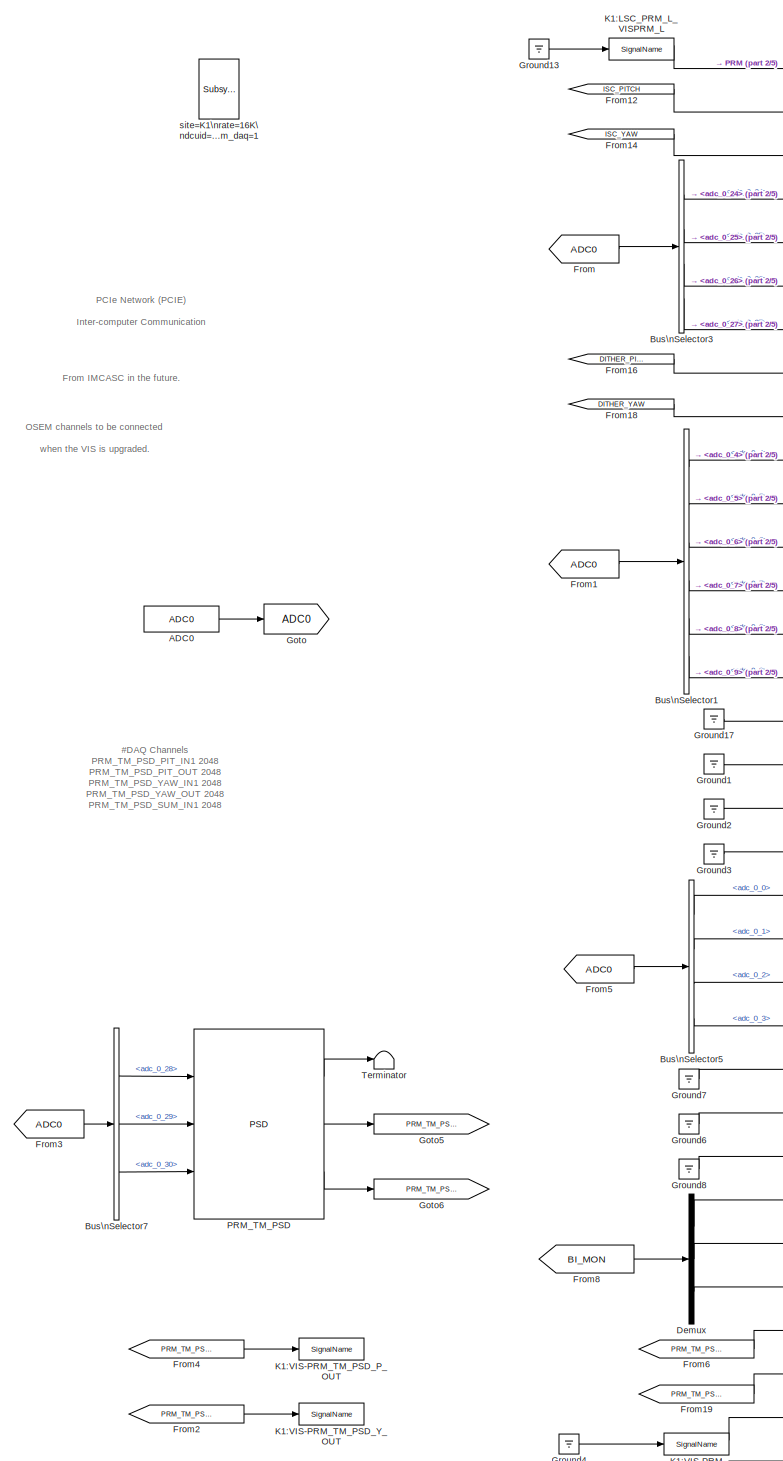
[diagram: root canvas - part 1/5, left side, full height]
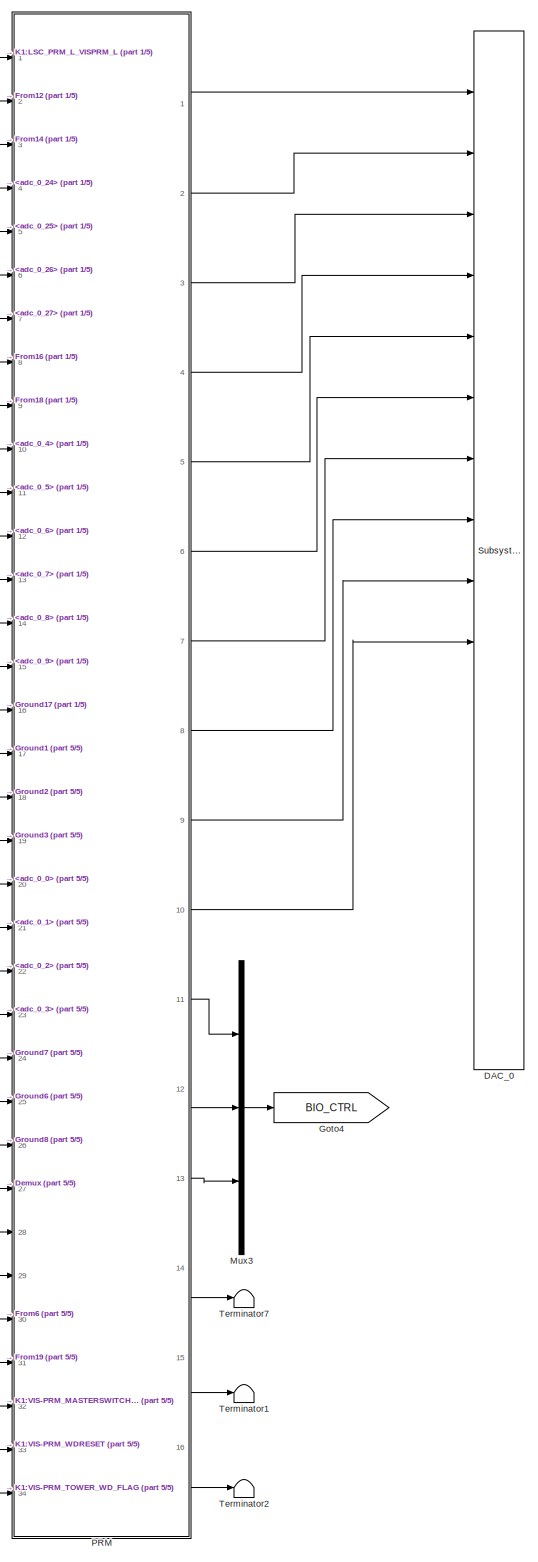
[diagram: root canvas - part 2/5, center side, full height]
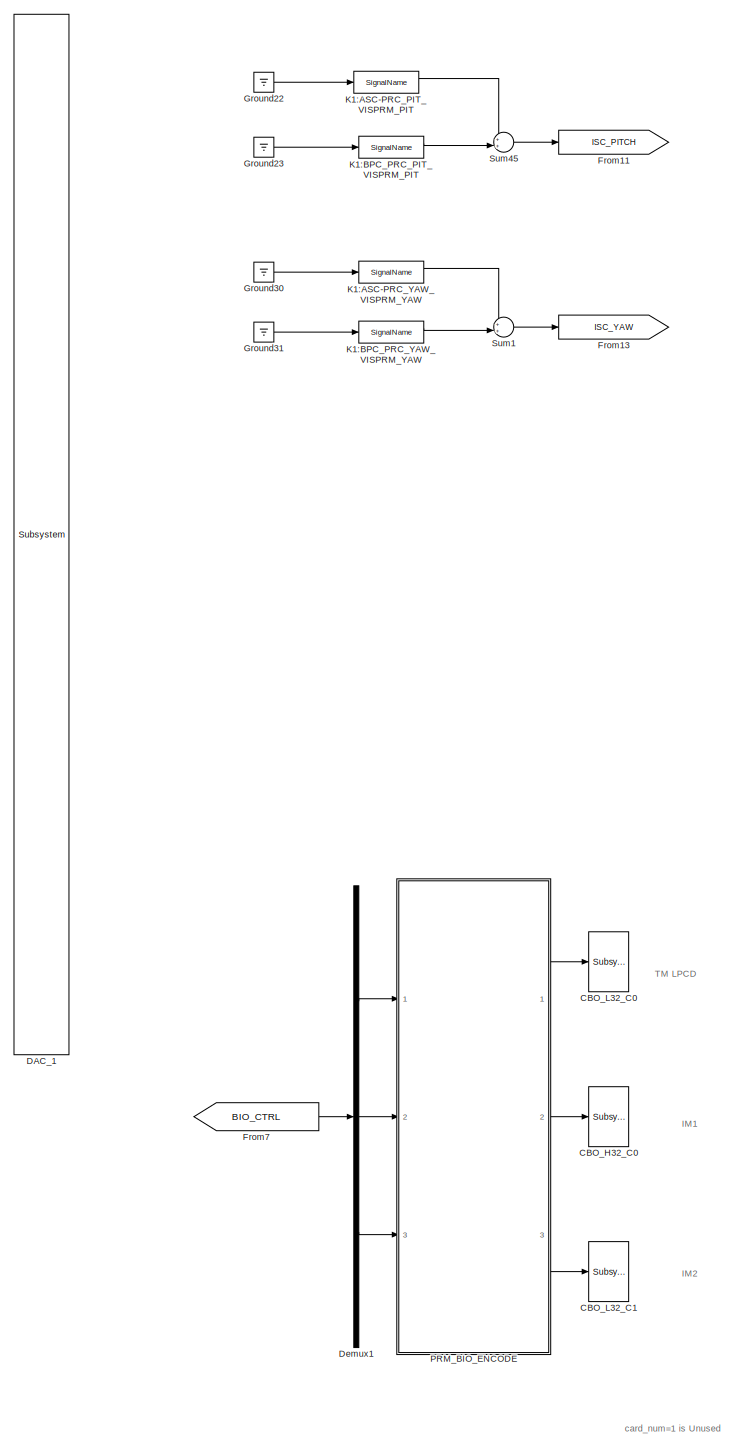
[diagram: root canvas - part 3/5, right side, full height]
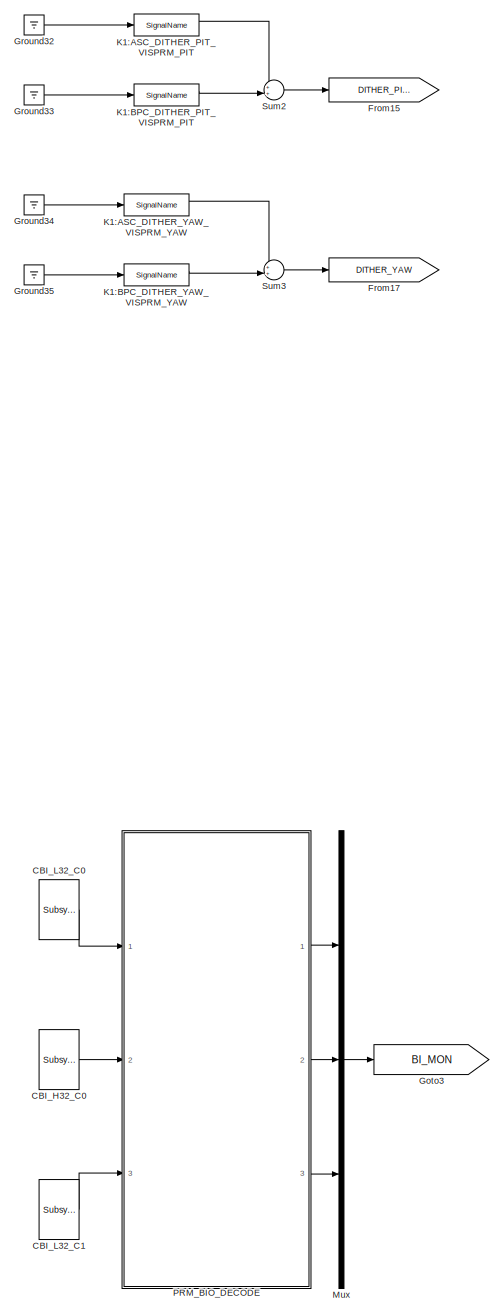
[diagram: root canvas - part 4/5, right side, full height]
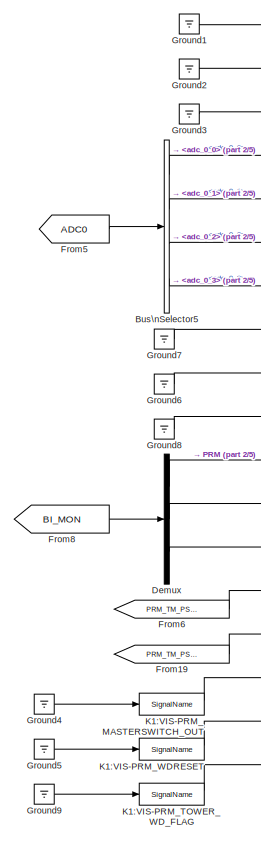
[diagram: root canvas - part 5/5, bottom left region]
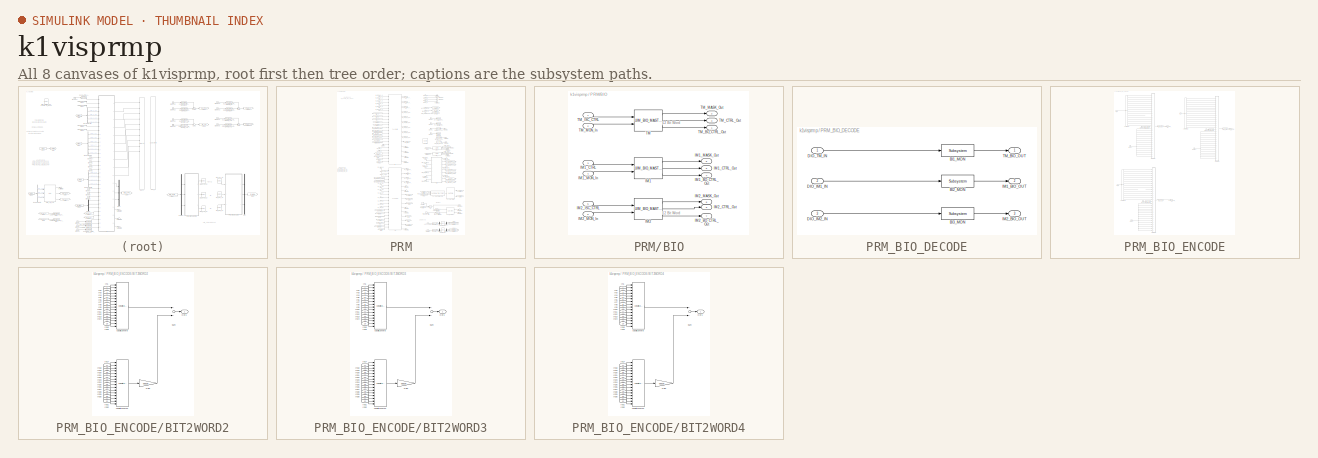
[diagram: thumbnail index - all 8 canvases of the model, root first then tree order]
MODEL k1visprmp
KIND model
BLOCK [Reference] ADC0  REF=cdsAdcx0/ADC0
  AttributesFormatString = %<Description>\\n%<Tag>
  Description = type-GSC_16AI64SSA\ncard_num=0
  Ports = [0, 1]
  SID = 1559
  SourceBlock = cdsAdcx0/ADC0
  SourceType = SubSystem
  Tag = cdsAdc
BLOCK [BusSelector] Bus\nSelector1
  AttributesFormatString = %<Description>
  Description = ADC Selector
  OutputSignals = adc_0_4,adc_0_5,adc_0_6,adc_0_7,adc_0_8,adc_0_9
  Ports = [1, 6]
  SID = 1485
BLOCK [BusSelector] Bus\nSelector3
  AttributesFormatString = %<Description>
  Description = ADC Selector
  OutputSignals = adc_0_24,adc_0_25,adc_0_26,adc_0_27
  Ports = [1, 4]
  SID = 1487
BLOCK [BusSelector] Bus\nSelector5
  AttributesFormatString = %<Description>
  Description = ADC Selector
  OutputSignals = adc_0_0,adc_0_1,adc_0_2,adc_0_3
  Ports = [1, 4]
  SID = 1489
BLOCK [BusSelector] Bus\nSelector7
  AttributesFormatString = %<Description>
  Description = ADC Selector
  OutputSignals = adc_0_28,adc_0_29,adc_0_30
  Ports = [1, 3]
  SID = 1490
BLOCK [Reference] CBI_H32_C0  REF=cdsCDI64/Subsystem
  AttributesFormatString = %<Tag>\\n%<Description>
  Description = card_num=1
  Ports = [0, 1]
  SID = 1562
  SourceBlock = cdsCDI64/Subsystem
  SourceType = SubSystem
  Tag = cdsCDI64
BLOCK [Reference] CBI_L32_C0  REF=cdsCDI64/Subsystem
  AttributesFormatString = %<Tag>\\n%<Description>
  Description = card_num=0
  Ports = [0, 1]
  SID = 1565
  SourceBlock = cdsCDI64/Subsystem
  SourceType = SubSystem
  Tag = cdsCDI64
BLOCK [Reference] CBI_L32_C1  REF=cdsCDI64/Subsystem
  AttributesFormatString = %<Tag>\\n%<Description>
  Description = card_num=2
  Ports = [0, 1]
  SID = 1566
  SourceBlock = cdsCDI64/Subsystem
  SourceType = SubSystem
  Tag = cdsCDI64
BLOCK [Reference] CBO_H32_C0  REF=cdsCDO64/Subsystem
  AttributesFormatString = %<Tag>\\n%<Description>
  Description = card_num=1
  Ports = [1]
  SID = 1568
  SourceBlock = cdsCDO64/Subsystem
  SourceType = SubSystem
  Tag = cdsCDO64
BLOCK [Reference] CBO_L32_C0  REF=cdsCDO64/Subsystem
  AttributesFormatString = %<Tag>\\n%<Description>
  Description = card_num=0
  Ports = [1]
  SID = 1571
  SourceBlock = cdsCDO64/Subsystem
  SourceType = SubSystem
  Tag = cdsCDO64
BLOCK [Reference] CBO_L32_C1  REF=cdsCDO64/Subsystem
  AttributesFormatString = %<Tag>\\n%<Description>
  Description = card_num=2
  Ports = [1]
  SID = 1572
  SourceBlock = cdsCDO64/Subsystem
  SourceType = SubSystem
  Tag = cdsCDO64
BLOCK [Reference] DAC_0  REF=dac/Subsystem  (lib defined in slx_40ef132df75b, slx_b7657ccccc5b, +4 more)
  AttributesFormatString = %<Description>
  Description = type=GSC_16AO16,\ncard_num=0
  Ports = [16]
  SID = 1560
  SourceBlock = dac/Subsystem
  SourceType = SubSystem
BLOCK [Reference] DAC_1  REF=dac/Subsystem  (lib defined in slx_40ef132df75b, slx_b7657ccccc5b, +4 more)
  AttributesFormatString = %<Description>
  Description = type=GSC_16AO16,\ncard_num=1
  Ports = [16]
  SID = 1561
  SourceBlock = dac/Subsystem
  SourceType = SubSystem
BLOCK [Demux] Demux
  DisplayOption = bar
  Outputs = 3
  Ports = [1, 3]
  SID = 1491
BLOCK [Demux] Demux1
  DisplayOption = bar
  Outputs = 3
  Ports = [1, 3]
  SID = 1121
BLOCK [From] From
  GotoTag = ADC0
  SID = 1529
BLOCK [From] From1
  GotoTag = ADC0
  SID = 1530
BLOCK [Goto] From11
  GotoTag = ISC_PITCH
  SID = 1608
BLOCK [From] From12
  GotoTag = ISC_PITCH
  SID = 1636
BLOCK [Goto] From13
  GotoTag = ISC_YAW
  SID = 1609
BLOCK [From] From14
  GotoTag = ISC_YAW
  SID = 1637
BLOCK [Goto] From15
  GotoTag = DITHER_PITCH
  SID = 1610
BLOCK [From] From16
  GotoTag = DITHER_PITCH
  SID = 1638
BLOCK [Goto] From17
  GotoTag = DITHER_YAW
  SID = 1611
BLOCK [From] From18
  GotoTag = DITHER_YAW
  SID = 1639
BLOCK [From] From19
  GotoTag = PRM_TM_PSD_Y
  SID = 1643
BLOCK [From] From2
  GotoTag = PRM_TM_PSD_Y
  SID = 1661
BLOCK [From] From3
  GotoTag = ADC0
  SID = 1532
BLOCK [From] From4
  GotoTag = PRM_TM_PSD_P
  SID = 1662
BLOCK [From] From5
  GotoTag = ADC0
  SID = 1534
BLOCK [From] From6
  GotoTag = PRM_TM_PSD_P
  SID = 1642
BLOCK [From] From7
  GotoTag = BIO_CTRL
  SID = 1122
BLOCK [From] From8
  GotoTag = BI_MON
  SID = 1498
BLOCK [Goto] Goto
  GotoTag = ADC0
  SID = 1499
BLOCK [Goto] Goto3
  GotoTag = BI_MON
  SID = 1123
BLOCK [Goto] Goto4
  GotoTag = BIO_CTRL
  SID = 774
BLOCK [Goto] Goto5
  GotoTag = PRM_TM_PSD_P
  SID = 1640
BLOCK [Goto] Goto6
  GotoTag = PRM_TM_PSD_Y
  SID = 1641
BLOCK [Ground] Ground1
  SID = 1644
BLOCK [Ground] Ground13
  SID = 1503
BLOCK [Ground] Ground17
  SID = 1578
BLOCK [Ground] Ground2
  SID = 1645
BLOCK [Ground] Ground22
  SID = 1612
BLOCK [Ground] Ground23
  SID = 1613
BLOCK [Ground] Ground3
  SID = 1646
BLOCK [Ground] Ground30
  SID = 1614
BLOCK [Ground] Ground31
  SID = 1615
BLOCK [Ground] Ground32
  SID = 1616
BLOCK [Ground] Ground33
  SID = 1617
BLOCK [Ground] Ground34
  SID = 1618
BLOCK [Ground] Ground35
  SID = 1619
BLOCK [Ground] Ground4
  SID = 1648
BLOCK [Ground] Ground5
  SID = 1650
BLOCK [Ground] Ground6
  SID = 1507
BLOCK [Ground] Ground7
  SID = 1508
BLOCK [Ground] Ground8
  SID = 1509
BLOCK [Ground] Ground9
  SID = 1652
BLOCK [Reference] K1:ASC-PRC_PIT_VISPRM_PIT  REF=cdsIPCx/SignalName
  AttributesFormatString = %<Tag>
  Description = Inter-Process Communication via PCI Express network.
  Ports = [1, 2]
  SID = 1632
  SourceBlock = cdsIPCx/SignalName
  SourceType = SubSystem
  Tag = cdsIPCx_PCIE
BLOCK [Reference] K1:ASC-PRC_YAW_VISPRM_YAW  REF=cdsIPCx/SignalName
  AttributesFormatString = %<Tag>
  Description = Inter-Process Communication via PCI Express network.
  Ports = [1, 2]
  SID = 1633
  SourceBlock = cdsIPCx/SignalName
  SourceType = SubSystem
  Tag = cdsIPCx_PCIE
BLOCK [Reference] K1:ASC_DITHER_PIT_VISPRM_PIT  REF=cdsIPCx/SignalName
  AttributesFormatString = %<Tag>
  Description = Inter-Process Communication via PCI Express network.
  Ports = [1, 2]
  SID = 1634
  SourceBlock = cdsIPCx/SignalName
  SourceType = SubSystem
  Tag = cdsIPCx_PCIE
BLOCK [Reference] K1:ASC_DITHER_YAW_VISPRM_YAW  REF=cdsIPCx/SignalName
  AttributesFormatString = %<Tag>
  Description = Inter-Process Communication via PCI Express network.
  Ports = [1, 2]
  SID = 1635
  SourceBlock = cdsIPCx/SignalName
  SourceType = SubSystem
  Tag = cdsIPCx_PCIE
BLOCK [Reference] K1:BPC_DITHER_PIT_VISPRM_PIT  REF=cdsIPCx/SignalName
  AttributesFormatString = %<Tag>
  Description = Inter-Process Communication via PCI Express network.
  Ports = [1, 2]
  SID = 1624
  SourceBlock = cdsIPCx/SignalName
  SourceType = SubSystem
  Tag = cdsIPCx_PCIE
BLOCK [Reference] K1:BPC_DITHER_YAW_VISPRM_YAW  REF=cdsIPCx/SignalName
  AttributesFormatString = %<Tag>
  Description = Inter-Process Communication via PCI Express network.
  Ports = [1, 2]
  SID = 1625
  SourceBlock = cdsIPCx/SignalName
  SourceType = SubSystem
  Tag = cdsIPCx_PCIE
BLOCK [Reference] K1:BPC_PRC_PIT_VISPRM_PIT  REF=cdsIPCx/SignalName
  AttributesFormatString = %<Tag>
  Description = Inter-Process Communication via PCI Express network.
  Ports = [1, 2]
  SID = 1626
  SourceBlock = cdsIPCx/SignalName
  SourceType = SubSystem
  Tag = cdsIPCx_PCIE
BLOCK [Reference] K1:BPC_PRC_YAW_VISPRM_YAW  REF=cdsIPCx/SignalName
  AttributesFormatString = %<Tag>
  Description = Inter-Process Communication via PCI Express network.
  Ports = [1, 2]
  SID = 1627
  SourceBlock = cdsIPCx/SignalName
  SourceType = SubSystem
  Tag = cdsIPCx_PCIE
BLOCK [Reference] K1:LSC_PRM_L_VISPRM_L  REF=cdsIPCx/SignalName
  AttributesFormatString = %<Tag>
  Description = Inter-Process Communication via PCI Express network.
  Ports = [1, 2]
  SID = 1588
  SourceBlock = cdsIPCx/SignalName
  SourceType = SubSystem
  Tag = cdsIPCx_PCIE
BLOCK [Reference] K1:VIS-PRM_MASTERSWITCH_OUT  REF=cdsIPCx/SignalName
  AttributesFormatString = %<Tag>
  Description = Inter-Process Communication via Shared memory.
  Ports = [1, 2]
  SID = 1647
  SourceBlock = cdsIPCx/SignalName
  SourceType = SubSystem
  Tag = cdsIPCx_SHMEM
BLOCK [Reference] K1:VIS-PRM_TM_PSD_P_OUT  REF=cdsIPCx/SignalName
  AttributesFormatString = %<Tag>
  Description = Inter-Process Communication via Shared memory.
  Ports = [1, 2]
  SID = 1659
  SourceBlock = cdsIPCx/SignalName
  SourceType = SubSystem
  Tag = cdsIPCx_SHMEM
BLOCK [Reference] K1:VIS-PRM_TM_PSD_Y_OUT  REF=cdsIPCx/SignalName
  AttributesFormatString = %<Tag>
  Description = Inter-Process Communication via Shared memory.
  Ports = [1, 2]
  SID = 1660
  SourceBlock = cdsIPCx/SignalName
  SourceType = SubSystem
  Tag = cdsIPCx_SHMEM
BLOCK [Reference] K1:VIS-PRM_TOWER_WD_FLAG  REF=cdsIPCx/SignalName
  AttributesFormatString = %<Tag>
  Description = Inter-Process Communication via Shared memory.
  Ports = [1, 2]
  SID = 1651
  SourceBlock = cdsIPCx/SignalName
  SourceType = SubSystem
  Tag = cdsIPCx_SHMEM
BLOCK [Reference] K1:VIS-PRM_WDRESET  REF=cdsIPCx/SignalName
  AttributesFormatString = %<Tag>
  Description = Inter-Process Communication via Shared memory.
  Ports = [1, 2]
  SID = 1649
  SourceBlock = cdsIPCx/SignalName
  SourceType = SubSystem
  Tag = cdsIPCx_SHMEM
BLOCK [Mux] Mux
  DisplayOption = bar
  Inputs = 3
  Ports = [3, 1]
  SID = 1125
BLOCK [Mux] Mux3
  DisplayOption = bar
  Inputs = 3
  Ports = [3, 1]
  SID = 804
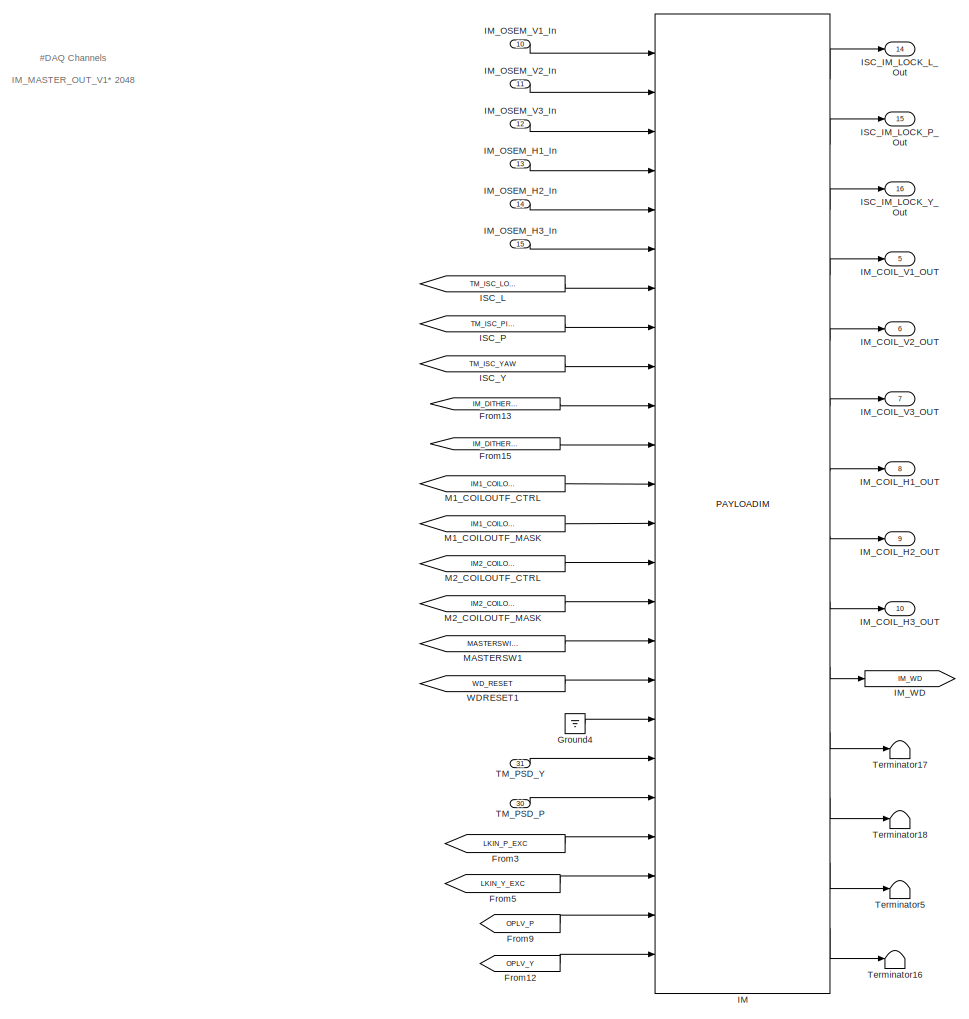
[diagram: PRM - part 1/4, top left region]
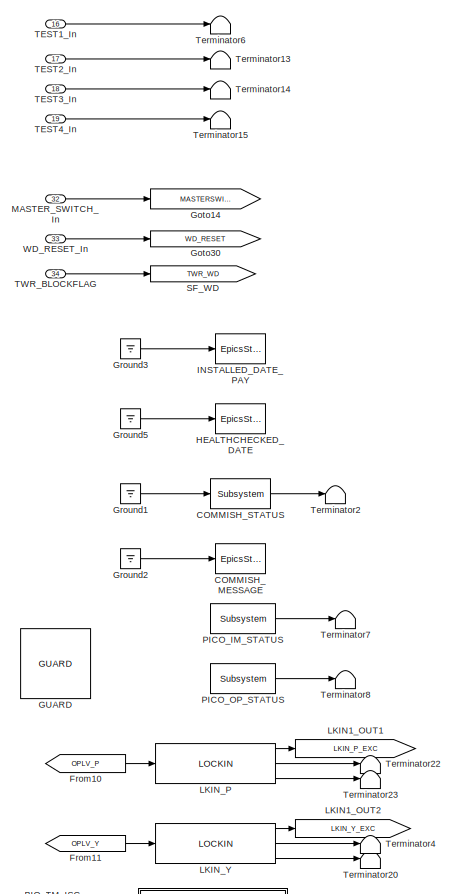
[diagram: PRM - part 2/4, top right region]
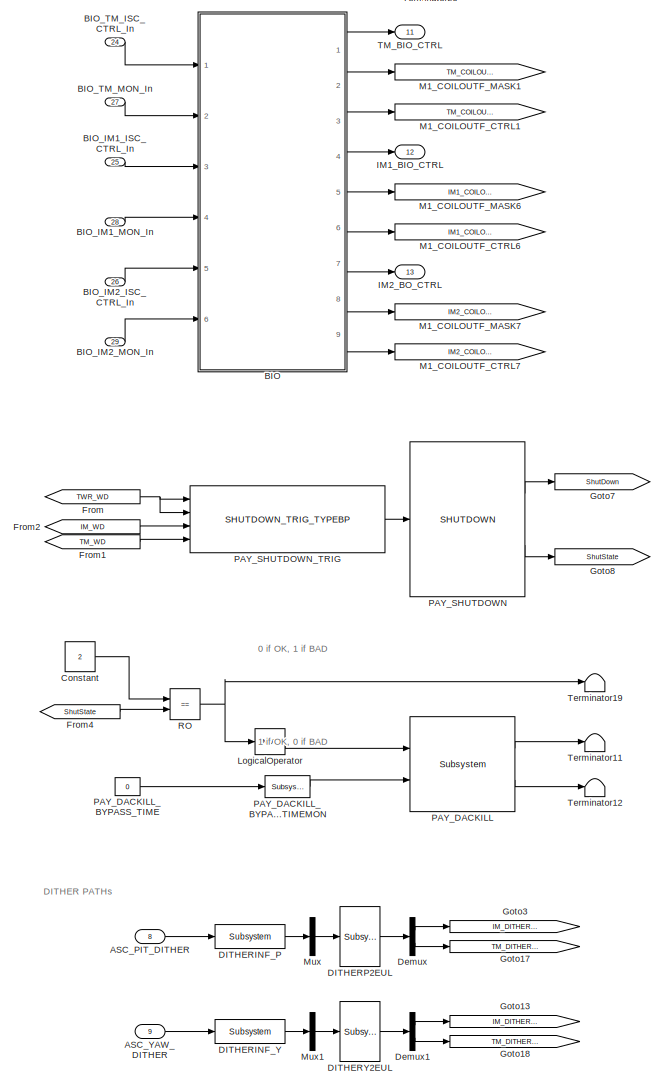
[diagram: PRM - part 3/4, bottom right region]
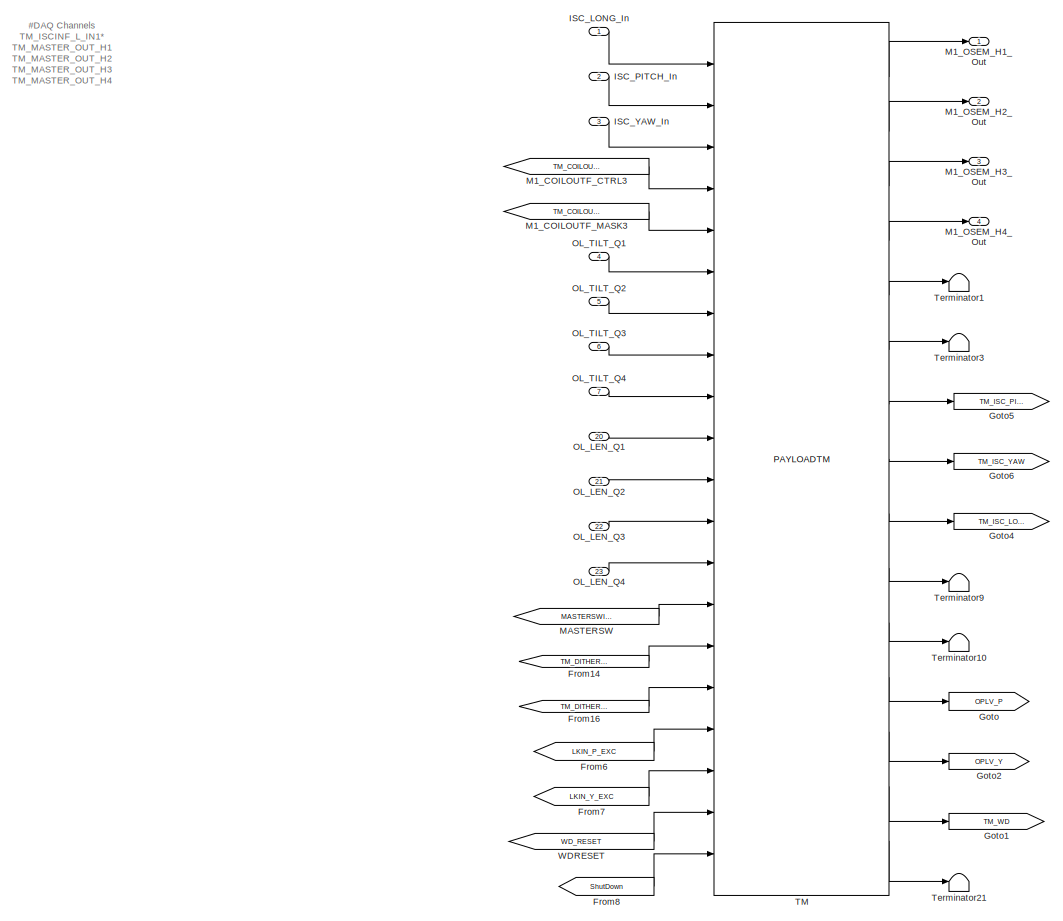
[diagram: PRM - part 4/4, bottom left region]
BLOCK [SubSystem] PRM
  AncestorBlock = TYPEBP_MASTER/TYPEBPMASTER_PAY
  AttributesFormatString = %<Description>
  Description = TYPEBP MASTER
  Ports = [34, 16]
  RequestExecContextInheritance = off
  SID = 1665
  Variant = off
BLOCK [Inport] PRM/ASC_PIT_DITHER
  IconDisplay = Port number
  Port = 8
  SID = 1665:1663
BLOCK [Inport] PRM/ASC_YAW_DITHER
  IconDisplay = Port number
  Port = 9
  SID = 1665:1664
BLOCK [SubSystem] PRM/BIO
  Ports = [6, 9]
  RequestExecContextInheritance = off
  SID = 1665:1690
  Variant = off
BLOCK [Reference] PRM/BIO/IM1  REF=STATE_BIO_MASTER/UIM_BIO_MASTER
  Ports = [2, 3]
  SID = 1665:1697
  SourceBlock = STATE_BIO_MASTER/UIM_BIO_MASTER
  SourceType = SubSystem
BLOCK [Outport] PRM/BIO/IM1_BO_CTRL_Out
  IconDisplay = Port number
  Port = 4
  SID = 1665:1703
BLOCK [Inport] PRM/BIO/IM1_CTRL
  IconDisplay = Port number
  Port = 3
  SID = 1665:1693
BLOCK [Outport] PRM/BIO/IM1_CTRL_Out
  IconDisplay = Port number
  Port = 6
  SID = 1665:1705
BLOCK [Outport] PRM/BIO/IM1_MASK_Out
  IconDisplay = Port number
  Port = 5
  SID = 1665:1704
BLOCK [Inport] PRM/BIO/IM1_MON_In
  IconDisplay = Port number
  Port = 4
  SID = 1665:1694
BLOCK [Reference] PRM/BIO/IM2  REF=STATE_BIO_MASTER/UIM_BIO_MASTER
  Ports = [2, 3]
  SID = 1665:1698
  SourceBlock = STATE_BIO_MASTER/UIM_BIO_MASTER
  SourceType = SubSystem
BLOCK [Outport] PRM/BIO/IM2_BO_CTRL_Out
  IconDisplay = Port number
  Port = 7
  SID = 1665:1706
BLOCK [Outport] PRM/BIO/IM2_CTRL_Out
  IconDisplay = Port number
  Port = 9
  SID = 1665:1708
BLOCK [Inport] PRM/BIO/IM2_ISC_CTRL
  IconDisplay = Port number
  Port = 5
  SID = 1665:1695
BLOCK [Outport] PRM/BIO/IM2_MASK_Out
  IconDisplay = Port number
  Port = 8
  SID = 1665:1707
BLOCK [Inport] PRM/BIO/IM2_MON_In
  IconDisplay = Port number
  Port = 6
  SID = 1665:1696
BLOCK [Reference] PRM/BIO/TM  REF=STATE_BIO_MASTER/UIM_BIO_MASTER
  Ports = [2, 3]
  SID = 1665:1699
  SourceBlock = STATE_BIO_MASTER/UIM_BIO_MASTER
  SourceType = SubSystem
BLOCK [Outport] PRM/BIO/TM_BO_CTRL_Out
  IconDisplay = Port number
  SID = 1665:1700
BLOCK [Outport] PRM/BIO/TM_CTRL_Out
  IconDisplay = Port number
  Port = 3
  SID = 1665:1702
BLOCK [Inport] PRM/BIO/TM_ISC_CTRL
  IconDisplay = Port number
  SID = 1665:1691
BLOCK [Outport] PRM/BIO/TM_MASK_Out
  IconDisplay = Port number
  Port = 2
  SID = 1665:1701
BLOCK [Inport] PRM/BIO/TM_MON_In
  IconDisplay = Port number
  Port = 2
  SID = 1665:1692
BLOCK [Inport] PRM/BIO_IM1_ISC_CTRL_In
  IconDisplay = Port number
  Port = 25
  SID = 1665:1680
BLOCK [Inport] PRM/BIO_IM1_MON_In
  IconDisplay = Port number
  Port = 28
  SID = 1665:1683
BLOCK [Inport] PRM/BIO_IM2_ISC_CTRL_In
  IconDisplay = Port number
  Port = 26
  SID = 1665:1681
BLOCK [Inport] PRM/BIO_IM2_MON_In
  IconDisplay = Port number
  Port = 29
  SID = 1665:1684
BLOCK [Inport] PRM/BIO_TM_ISC_CTRL_In
  IconDisplay = Port number
  Port = 24
  SID = 1665:1679
BLOCK [Inport] PRM/BIO_TM_MON_In
  IconDisplay = Port number
  Port = 27
  SID = 1665:1682
BLOCK [Reference] PRM/COMMISH_MESSAGE  REF=cdsEpicsStringIn/EpicsStringIn
  AttributesFormatString = %<Tag>
  Description = cdsEpicsStringIn
  Ports = [1]
  SID = 1665:1711
  SourceBlock = cdsEpicsStringIn/EpicsStringIn
  SourceType = SubSystem
  Tag = cdsEpicsStringIn
BLOCK [Reference] PRM/COMMISH_STATUS  REF=cdsEpicsBinIn/Subsystem
  AttributesFormatString = %<Tag>
  Description = Purpose:                                                                            \nCreate an EPICS binary (0 or 1) input channel to the FE realtime controls.          \n                                                                                    \nOperation:                                                                          \nOutputs value from an EPICS ai record. Value is binary i...<+252ch>  <repeated x4 — deduplicated; at blocks: COMMISH_STATUS, IM1_WD_RSET, IM2_WD_RSET, TM_WD_RSET>
  Ports = [1, 1]
  SID = 1665:1712
  SourceBlock = cdsEpicsBinIn/Subsystem
  SourceType = SubSystem
  Tag = cdsEpicsBinIn
BLOCK [Constant] PRM/Constant
  SID = 1665:1713
  Value = 2
BLOCK [Reference] PRM/DITHERINF_P  REF=cdsFilt/Subsystem
  AttributesFormatString = %<Tag>
  Description = Purpose:                                                                                                                                                                                                                                  \nStandard CDS IIR filter module.                                                                                                                                     ...<+1302ch>
  Ports = [1, 1]
  SID = 1665:1865
  SourceBlock = cdsFilt/Subsystem
  SourceType = SubSystem
  Tag = cdsFilt
BLOCK [Reference] PRM/DITHERINF_Y  REF=cdsFilt/Subsystem
  AttributesFormatString = %<Tag>
  Description = Purpose:                                                                                                                                                                                                                                  \nStandard CDS IIR filter module.                                                                                                                                     ...<+1302ch>
  Ports = [1, 1]
  SID = 1665:1866
  SourceBlock = cdsFilt/Subsystem
  SourceType = SubSystem
  Tag = cdsFilt
BLOCK [Reference] PRM/DITHERP2EUL  REF=cdsMuxMatrix/Subsystem
  AttributesFormatString = %<Tag>
  Description = Any size matrix. Inputs and outputs must be connected using Mux and Demux parts.
  Ports = [1, 1]
  SID = 1665:1867
  SourceBlock = cdsMuxMatrix/Subsystem
  SourceType = SubSystem
  Tag = cdsMuxMatrix
BLOCK [Reference] PRM/DITHERY2EUL  REF=cdsMuxMatrix/Subsystem
  AttributesFormatString = %<Tag>
  Description = Any size matrix. Inputs and outputs must be connected using Mux and Demux parts.
  Ports = [1, 1]
  SID = 1665:1868
  SourceBlock = cdsMuxMatrix/Subsystem
  SourceType = SubSystem
  Tag = cdsMuxMatrix
BLOCK [Demux] PRM/Demux
  DisplayOption = bar
  Outputs = 2
  Ports = [1, 2]
  SID = 1665:1869
BLOCK [Demux] PRM/Demux1
  DisplayOption = bar
  Outputs = 2
  Ports = [1, 2]
  SID = 1665:1870
BLOCK [From] PRM/From
  GotoTag = TWR_WD
  SID = 1665:1714
BLOCK [From] PRM/From1
  CloseFcn = tagdialog Close
  GotoTag = TM_WD
  SID = 1665:1715
BLOCK [From] PRM/From10
  CloseFcn = tagdialog Close
  GotoTag = OPLV_P
  SID = 1665:1841
BLOCK [From] PRM/From11
  CloseFcn = tagdialog Close
  GotoTag = OPLV_Y
  SID = 1665:1842
BLOCK [From] PRM/From12
  CloseFcn = tagdialog Close
  GotoTag = OPLV_Y
  SID = 1665:1858
BLOCK [From] PRM/From13
  GotoTag = IM_DITHER_PIT
  SID = 1665:1878
BLOCK [From] PRM/From14
  GotoTag = TM_DITHER_PIT
  SID = 1665:1879
BLOCK [From] PRM/From15
  GotoTag = IM_DITHER_YAW
  SID = 1665:1880
BLOCK [From] PRM/From16
  GotoTag = TM_DITHER_YAW
  SID = 1665:1881
BLOCK [From] PRM/From2
  CloseFcn = tagdialog Close
  GotoTag = IM_WD
  SID = 1665:1719
BLOCK [From] PRM/From3
  GotoTag = LKIN_P_EXC
  SID = 1665:1853
BLOCK [From] PRM/From4
  GotoTag = ShutState
  SID = 1665:1720
BLOCK [From] PRM/From5
  GotoTag = LKIN_Y_EXC
  SID = 1665:1854
BLOCK [From] PRM/From6
  GotoTag = LKIN_P_EXC
  SID = 1665:1855
BLOCK [From] PRM/From7
  GotoTag = LKIN_Y_EXC
  SID = 1665:1856
BLOCK [From] PRM/From8
  GotoTag = ShutDown
  SID = 1665:1722
BLOCK [From] PRM/From9
  CloseFcn = tagdialog Close
  GotoTag = OPLV_P
  SID = 1665:1857
BLOCK [Reference] PRM/GUARD  REF=ISC_common/GUARD
  Ports = []
  SID = 1665:1724
  SourceBlock = ISC_common/GUARD
  SourceType = SubSystem
BLOCK [Goto] PRM/Goto
  GotoTag = OPLV_P
  SID = 1665:1851
BLOCK [Goto] PRM/Goto1
  GotoTag = TM_WD
  SID = 1665:1726
BLOCK [Goto] PRM/Goto13
  GotoTag = IM_DITHER_YAW
  SID = 1665:1871
BLOCK [Goto] PRM/Goto14
  GotoTag = MASTERSWITCH
  SID = 1665:1728
BLOCK [Goto] PRM/Goto17
  GotoTag = TM_DITHER_PIT
  SID = 1665:1872
BLOCK [Goto] PRM/Goto18
  GotoTag = TM_DITHER_YAW
  SID = 1665:1873
BLOCK [Goto] PRM/Goto2
  GotoTag = OPLV_Y
  SID = 1665:1852
BLOCK [Goto] PRM/Goto3
  GotoTag = IM_DITHER_PIT
  SID = 1665:1874
BLOCK [Goto] PRM/Goto30
  GotoTag = WD_RESET
  SID = 1665:1732
BLOCK [Goto] PRM/Goto4
  GotoTag = TM_ISC_LONG
  SID = 1665:1733
BLOCK [Goto] PRM/Goto5
  GotoTag = TM_ISC_PITCH
  SID = 1665:1734
BLOCK [Goto] PRM/Goto6
  GotoTag = TM_ISC_YAW
  SID = 1665:1735
BLOCK [Goto] PRM/Goto7
  GotoTag = ShutDown
  SID = 1665:1736
BLOCK [Goto] PRM/Goto8
  GotoTag = ShutState
  SID = 1665:1737
BLOCK [Ground] PRM/Ground1
  SID = 1665:1739
BLOCK [Ground] PRM/Ground2
  SID = 1665:1745
BLOCK [Ground] PRM/Ground3
  SID = 1665:1746
BLOCK [Ground] PRM/Ground4
  SID = 1665:1824
BLOCK [Ground] PRM/Ground5
  SID = 1665:1747
BLOCK [Reference] PRM/HEALTHCHECKED_DATE  REF=cdsEpicsStringIn/EpicsStringIn
  AttributesFormatString = %<Tag>
  Description = cdsEpicsStringIn
  Ports = [1]
  SID = 1665:1751
  SourceBlock = cdsEpicsStringIn/EpicsStringIn
  SourceType = SubSystem
  Tag = cdsEpicsStringIn
BLOCK [Reference] PRM/IM  REF=PAYLOAD_MASTER/PAYLOADIM
  Description = SIXOSEMSTAGE_FACE_MASTER
  Ports = [24, 14]
  SID = 1665:1839
  SourceBlock = PAYLOAD_MASTER/PAYLOADIM
  SourceType = SubSystem
BLOCK [Outport] PRM/IM1_BIO_CTRL
  IconDisplay = Port number
  Port = 12
  SID = 1665:1813
BLOCK [Outport] PRM/IM2_BO_CTRL
  IconDisplay = Port number
  Port = 13
  SID = 1665:1814
BLOCK [Outport] PRM/IM_COIL_H1_OUT
  IconDisplay = Port number
  Port = 8
  SID = 1665:1809
BLOCK [Outport] PRM/IM_COIL_H2_OUT
  IconDisplay = Port number
  Port = 9
  SID = 1665:1810
BLOCK [Outport] PRM/IM_COIL_H3_OUT
  IconDisplay = Port number
  Port = 10
  SID = 1665:1811
BLOCK [Outport] PRM/IM_COIL_V1_OUT
  IconDisplay = Port number
  Port = 5
  SID = 1665:1806
BLOCK [Outport] PRM/IM_COIL_V2_OUT
  IconDisplay = Port number
  Port = 6
  SID = 1665:1807
BLOCK [Outport] PRM/IM_COIL_V3_OUT
  IconDisplay = Port number
  Port = 7
  SID = 1665:1808
BLOCK [Inport] PRM/IM_OSEM_H1_In
  IconDisplay = Port number
  Port = 13
  SID = 1665:1668
BLOCK [Inport] PRM/IM_OSEM_H2_In
  IconDisplay = Port number
  Port = 14
  SID = 1665:1669
BLOCK [Inport] PRM/IM_OSEM_H3_In
  IconDisplay = Port number
  Port = 15
  SID = 1665:1670
BLOCK [Inport] PRM/IM_OSEM_V1_In
  IconDisplay = Port number
  Port = 10
  SID = 1665:1665
BLOCK [Inport] PRM/IM_OSEM_V2_In
  IconDisplay = Port number
  Port = 11
  SID = 1665:1666
BLOCK [Inport] PRM/IM_OSEM_V3_In
  IconDisplay = Port number
  Port = 12
  SID = 1665:1667
BLOCK [Goto] PRM/IM_WD
  GotoTag = IM_WD
  SID = 1665:1753
BLOCK [Reference] PRM/INSTALLED_DATE_PAY  REF=cdsEpicsStringIn/EpicsStringIn
  AttributesFormatString = %<Tag>
  Description = cdsEpicsStringIn
  Ports = [1]
  SID = 1665:1754
  SourceBlock = cdsEpicsStringIn/EpicsStringIn
  SourceType = SubSystem
  Tag = cdsEpicsStringIn
BLOCK [Outport] PRM/ISC_IM_LOCK_L_Out
  IconDisplay = Port number
  Port = 14
  SID = 1665:1815
BLOCK [Outport] PRM/ISC_IM_LOCK_P_Out
  IconDisplay = Port number
  Port = 15
  SID = 1665:1816
BLOCK [Outport] PRM/ISC_IM_LOCK_Y_Out
  IconDisplay = Port number
  Port = 16
  SID = 1665:1817
BLOCK [From] PRM/ISC_L
  CloseFcn = tagdialog Close
  GotoTag = TM_ISC_LONG
  SID = 1665:1755
BLOCK [Inport] PRM/ISC_LONG_In
  IconDisplay = Port number
  SID = 1665:1656
BLOCK [From] PRM/ISC_P
  CloseFcn = tagdialog Close
  GotoTag = TM_ISC_PITCH
  SID = 1665:1756
BLOCK [Inport] PRM/ISC_PITCH_In
  IconDisplay = Port number
  Port = 2
  SID = 1665:1657
BLOCK [From] PRM/ISC_Y
  CloseFcn = tagdialog Close
  GotoTag = TM_ISC_YAW
  SID = 1665:1757
BLOCK [Inport] PRM/ISC_YAW_In
  IconDisplay = Port number
  Port = 3
  SID = 1665:1658
BLOCK [Goto] PRM/LKIN1_OUT1
  GotoTag = LKIN_P_EXC
  SID = 1665:1843
BLOCK [Goto] PRM/LKIN1_OUT2
  GotoTag = LKIN_Y_EXC
  SID = 1665:1844
BLOCK [Reference] PRM/LKIN_P  REF=lockin/LOCKIN
  AttributesFormatString = %<Tag>
  Description = ADL=LOCKIN.adl
  Ports = [1, 3]
  SID = 1665:1845
  SourceBlock = lockin/LOCKIN
  SourceType = SubSystem
BLOCK [Reference] PRM/LKIN_Y  REF=lockin/LOCKIN
  AttributesFormatString = %<Tag>
  Description = ADL=LOCKIN.adl
  Ports = [1, 3]
  SID = 1665:1846
  SourceBlock = lockin/LOCKIN
  SourceType = SubSystem
BLOCK [Logic] PRM/LogicalOperator
  AllPortsSameDT = off
  Operator = NOT
  OutDataTypeStr = boolean
  Ports = [1, 1]
  SID = 1665:1758
BLOCK [From] PRM/M1_COILOUTF_CTRL
  CloseFcn = tagdialog Close
  GotoTag = IM1_COILOUTF_CTRL
  SID = 1665:1759
BLOCK [Goto] PRM/M1_COILOUTF_CTRL1
  GotoTag = TM_COILOUTF_CTRL
  SID = 1665:1760
BLOCK [From] PRM/M1_COILOUTF_CTRL3
  CloseFcn = tagdialog Close
  GotoTag = TM_COILOUTF_CTRL
  SID = 1665:1761
BLOCK [Goto] PRM/M1_COILOUTF_CTRL6
  GotoTag = IM1_COILOUTF_CTRL
  SID = 1665:1762
BLOCK [Goto] PRM/M1_COILOUTF_CTRL7
  GotoTag = IM2_COILOUTF_CTRL
  SID = 1665:1763
BLOCK [From] PRM/M1_COILOUTF_MASK
  CloseFcn = tagdialog Close
  GotoTag = IM1_COILOUTF_MASK
  SID = 1665:1764
BLOCK [Goto] PRM/M1_COILOUTF_MASK1
  GotoTag = TM_COILOUTF_MASK
  SID = 1665:1765
BLOCK [From] PRM/M1_COILOUTF_MASK3
  CloseFcn = tagdialog Close
  GotoTag = TM_COILOUTF_MASK
  SID = 1665:1766
BLOCK [Goto] PRM/M1_COILOUTF_MASK6
  GotoTag = IM1_COILOUTF_MASK
  SID = 1665:1767
BLOCK [Goto] PRM/M1_COILOUTF_MASK7
  GotoTag = IM2_COILOUTF_MASK
  SID = 1665:1768
BLOCK [Outport] PRM/M1_OSEM_H1_Out
  IconDisplay = Port number
  SID = 1665:1802
BLOCK [Outport] PRM/M1_OSEM_H2_Out
  IconDisplay = Port number
  Port = 2
  SID = 1665:1803
BLOCK [Outport] PRM/M1_OSEM_H3_Out
  IconDisplay = Port number
  Port = 3
  SID = 1665:1804
BLOCK [Outport] PRM/M1_OSEM_H4_Out
  IconDisplay = Port number
  Port = 4
  SID = 1665:1805
BLOCK [From] PRM/M2_COILOUTF_CTRL
  CloseFcn = tagdialog Close
  GotoTag = IM2_COILOUTF_CTRL
  SID = 1665:1769
BLOCK [From] PRM/M2_COILOUTF_MASK
  CloseFcn = tagdialog Close
  GotoTag = IM2_COILOUTF_MASK
  SID = 1665:1770
BLOCK [From] PRM/MASTERSW
  CloseFcn = tagdialog Close
  GotoTag = MASTERSWITCH
  SID = 1665:1771
BLOCK [From] PRM/MASTERSW1
  CloseFcn = tagdialog Close
  GotoTag = MASTERSWITCH
  SID = 1665:1772
BLOCK [Inport] PRM/MASTER_SWITCH_In
  IconDisplay = Port number
  Port = 32
  SID = 1665:1687
BLOCK [Mux] PRM/Mux
  DisplayOption = bar
  Inputs = 1
  Ports = [1, 1]
  SID = 1665:1875
BLOCK [Mux] PRM/Mux1
  DisplayOption = bar
  Inputs = 1
  Ports = [1, 1]
  SID = 1665:1876
BLOCK [Inport] PRM/OL_LEN_Q1
  IconDisplay = Port number
  Port = 20
  SID = 1665:1675
BLOCK [Inport] PRM/OL_LEN_Q2
  IconDisplay = Port number
  Port = 21
  SID = 1665:1676
BLOCK [Inport] PRM/OL_LEN_Q3
  IconDisplay = Port number
  Port = 22
  SID = 1665:1677
BLOCK [Inport] PRM/OL_LEN_Q4
  IconDisplay = Port number
  Port = 23
  SID = 1665:1678
BLOCK [Inport] PRM/OL_TILT_Q1
  IconDisplay = Port number
  Port = 4
  SID = 1665:1659
BLOCK [Inport] PRM/OL_TILT_Q2
  IconDisplay = Port number
  Port = 5
  SID = 1665:1660
BLOCK [Inport] PRM/OL_TILT_Q3
  IconDisplay = Port number
  Port = 6
  SID = 1665:1661
BLOCK [Inport] PRM/OL_TILT_Q4
  IconDisplay = Port number
  Port = 7
  SID = 1665:1662
BLOCK [Reference] PRM/PAY_DACKILL  REF=cdsDacKill/Subsystem
  AttributesFormatString = %<Description>
  Description = cdsDacKill
  Ports = [2, 2]
  SID = 1665:1775
  SourceBlock = cdsDacKill/Subsystem
  SourceType = SubSystem
BLOCK [Constant] PRM/PAY_DACKILL_BYPASS_TIME
  SID = 1665:1776
  Value = 0
BLOCK [Reference] PRM/PAY_DACKILL_BYPASS_TIMEMON  REF=cdsEpicsOut/Subsystem
  AttributesFormatString = %<Tag>
  Description = Purpose:                                          \nOutput a FE signal to an EPICS channel.           \n                                                  \nOperation:                                        \nTakes input value and passes it to EPICS record.  \n                                                  \nUsage:                                            \nName the part with the desired EPICS...<+14ch>  <repeated x7 — deduplicated; at blocks: PAY_DACKILL_BYPASS_TIMEMON, BI1_MON, BI2_MON, BI3_MON, DIO_0_OUT, DIO_1_OUT, DIO_2_OUT>
  Ports = [1, 1]
  SID = 1665:1777
  SourceBlock = cdsEpicsOut/Subsystem
  SourceType = SubSystem
  Tag = cdsEpicsOutput
BLOCK [Reference] PRM/PAY_SHUTDOWN  REF=SHUTDOWN/SHUTDOWN
  Ports = [1, 2]
  SID = 1665:1778
  SourceBlock = SHUTDOWN/SHUTDOWN
  SourceType = SubSystem
BLOCK [Reference] PRM/PAY_SHUTDOWN_TRIG  REF=VIS_LIB/SHUTDOWN_TRIG_TYPEBP
  Ports = [4, 1]
  SID = 1665:1779
  SourceBlock = VIS_LIB/SHUTDOWN_TRIG_TYPEBP
  SourceType = SubSystem
BLOCK [Reference] PRM/PICO_IM_STATUS  REF=cdsEpicsIn/Subsystem
  AttributesFormatString = %<Tag>
  Description = Purpose:                                                                              \nCreate an EPICS input channel connection to the FE realtime controls.                 \n                                                                                      \nOperation:                                                                            \nOutputs value from an EPICS ai record. Value is ...<+266ch>
  Ports = [0, 1]
  SID = 1665:1780
  SourceBlock = cdsEpicsIn/Subsystem
  SourceType = SubSystem
  Tag = cdsEpicsIn
BLOCK [Reference] PRM/PICO_OP_STATUS  REF=cdsEpicsIn/Subsystem
  AttributesFormatString = %<Tag>
  Description = Purpose:                                                                              \nCreate an EPICS input channel connection to the FE realtime controls.                 \n                                                                                      \nOperation:                                                                            \nOutputs value from an EPICS ai record. Value is ...<+266ch>
  Ports = [0, 1]
  SID = 1665:1781
  SourceBlock = cdsEpicsIn/Subsystem
  SourceType = SubSystem
  Tag = cdsEpicsIn
BLOCK [RelationalOperator] PRM/RO
  InputSameDT = off
  Operator = ==
  OutDataTypeStr = boolean
  Ports = [2, 1]
  SID = 1665:1782
BLOCK [Goto] PRM/SF_WD
  GotoTag = TWR_WD
  SID = 1665:1783
BLOCK [Inport] PRM/TEST1_In
  IconDisplay = Port number
  Port = 16
  SID = 1665:1671
BLOCK [Inport] PRM/TEST2_In
  IconDisplay = Port number
  Port = 17
  SID = 1665:1672
BLOCK [Inport] PRM/TEST3_In
  IconDisplay = Port number
  Port = 18
  SID = 1665:1673
BLOCK [Inport] PRM/TEST4_In
  IconDisplay = Port number
  Port = 19
  SID = 1665:1674
BLOCK [Reference] PRM/TM  REF=PAYLOAD_MASTER/PAYLOADTM
  Ports = [20, 15]
  SID = 1665:1840
  SourceBlock = PAYLOAD_MASTER/PAYLOADTM
  SourceType = SubSystem
BLOCK [Outport] PRM/TM_BIO_CTRL
  IconDisplay = Port number
  Port = 11
  SID = 1665:1812
BLOCK [Inport] PRM/TM_PSD_P
  IconDisplay = Port number
  Port = 30
  SID = 1665:1685
BLOCK [Inport] PRM/TM_PSD_Y
  IconDisplay = Port number
  Port = 31
  SID = 1665:1686
BLOCK [Inport] PRM/TWR_BLOCKFLAG
  IconDisplay = Port number
  Port = 34
  SID = 1665:1689
BLOCK [Terminator] PRM/Terminator1
  SID = 1665:1785
BLOCK [Terminator] PRM/Terminator10
  SID = 1665:1831
BLOCK [Terminator] PRM/Terminator11
  SID = 1665:1786
BLOCK [Terminator] PRM/Terminator12
  SID = 1665:1787
BLOCK [Terminator] PRM/Terminator13
  SID = 1665:1788
BLOCK [Terminator] PRM/Terminator14
  SID = 1665:1789
BLOCK [Terminator] PRM/Terminator15
  SID = 1665:1790
BLOCK [Terminator] PRM/Terminator16
  SID = 1665:1861
BLOCK [Terminator] PRM/Terminator17
  SID = 1665:1791
BLOCK [Terminator] PRM/Terminator18
  SID = 1665:1792
BLOCK [Terminator] PRM/Terminator19
  SID = 1665:1793
BLOCK [Terminator] PRM/Terminator2
  SID = 1665:1794
BLOCK [Terminator] PRM/Terminator20
  SID = 1665:1848
BLOCK [Terminator] PRM/Terminator21
  SID = 1665:1862
BLOCK [Terminator] PRM/Terminator22
  SID = 1665:1849
BLOCK [Terminator] PRM/Terminator23
  SID = 1665:1850
BLOCK [Terminator] PRM/Terminator3
  SID = 1665:1795
BLOCK [Terminator] PRM/Terminator4
  SID = 1665:1847
BLOCK [Terminator] PRM/Terminator5
  SID = 1665:1829
BLOCK [Terminator] PRM/Terminator6
  SID = 1665:1797
BLOCK [Terminator] PRM/Terminator7
  SID = 1665:1798
BLOCK [Terminator] PRM/Terminator8
  SID = 1665:1799
BLOCK [Terminator] PRM/Terminator9
  SID = 1665:1830
BLOCK [From] PRM/WDRESET
  CloseFcn = tagdialog Close
  GotoTag = WD_RESET
  SID = 1665:1800
BLOCK [From] PRM/WDRESET1
  CloseFcn = tagdialog Close
  GotoTag = WD_RESET
  SID = 1665:1801
BLOCK [Inport] PRM/WD_RESET_In
  IconDisplay = Port number
  Port = 33
  SID = 1665:1688
BLOCK [SubSystem] PRM_BIO_DECODE
  Ports = [3, 3]
  RequestExecContextInheritance = off
  SID = 1126
  Variant = off
BLOCK [Reference] PRM_BIO_DECODE/BI1_MON  REF=cdsEpicsOut/Subsystem
  AttributesFormatString = %<Tag>
  Ports = [1, 1]
  SID = 1133
  SourceBlock = cdsEpicsOut/Subsystem
  SourceType = SubSystem
  Tag = cdsEpicsOutput
BLOCK [Reference] PRM_BIO_DECODE/BI2_MON  REF=cdsEpicsOut/Subsystem
  AttributesFormatString = %<Tag>
  Ports = [1, 1]
  SID = 1134
  SourceBlock = cdsEpicsOut/Subsystem
  SourceType = SubSystem
  Tag = cdsEpicsOutput
BLOCK [Reference] PRM_BIO_DECODE/BI3_MON  REF=cdsEpicsOut/Subsystem
  AttributesFormatString = %<Tag>
  Ports = [1, 1]
  SID = 1135
  SourceBlock = cdsEpicsOut/Subsystem
  SourceType = SubSystem
  Tag = cdsEpicsOutput
BLOCK [Inport] PRM_BIO_DECODE/DIO_IM1_IN
  IconDisplay = Port number
  Port = 2
  SID = 1128
BLOCK [Inport] PRM_BIO_DECODE/DIO_IM2_IN
  IconDisplay = Port number
  Port = 3
  SID = 1129
BLOCK [Inport] PRM_BIO_DECODE/DIO_TM_IN
  IconDisplay = Port number
  SID = 1127
BLOCK [Outport] PRM_BIO_DECODE/IM1_BIO_OUT
  IconDisplay = Port number
  Port = 2
  SID = 1140
BLOCK [Outport] PRM_BIO_DECODE/IM2_BIO_OUT
  IconDisplay = Port number
  Port = 3
  SID = 1141
BLOCK [Outport] PRM_BIO_DECODE/TM_BIO_OUT
  IconDisplay = Port number
  SID = 1139
BLOCK [SubSystem] PRM_BIO_ENCODE
  Ports = [3, 3]
  RequestExecContextInheritance = off
  SID = 1145
  Variant = off
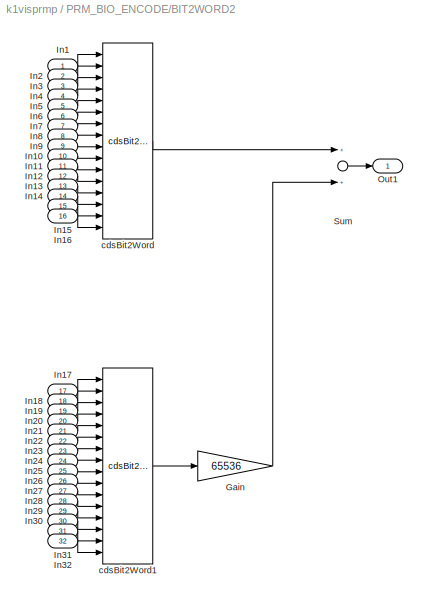
BLOCK [SubSystem] PRM_BIO_ENCODE/BIT2WORD2
  Ports = [32, 1]
  RequestExecContextInheritance = off
  SID = 1192
  Variant = off
BLOCK [Gain] PRM_BIO_ENCODE/BIT2WORD2/Gain
  Gain = 65536
  OutDataTypeStr = Inherit: Inherit via internal rule
  ParamDataTypeStr = Inherit: Inherit via internal rule
  SID = 1225
  SaturateOnIntegerOverflow = off
BLOCK [Inport] PRM_BIO_ENCODE/BIT2WORD2/In1
  IconDisplay = Port number
  SID = 1193
BLOCK [Inport] PRM_BIO_ENCODE/BIT2WORD2/In10
  IconDisplay = Port number
  Port = 10
  SID = 1202
BLOCK [Inport] PRM_BIO_ENCODE/BIT2WORD2/In11
  IconDisplay = Port number
  Port = 11
  SID = 1203
BLOCK [Inport] PRM_BIO_ENCODE/BIT2WORD2/In12
  IconDisplay = Port number
  Port = 12
  SID = 1204
BLOCK [Inport] PRM_BIO_ENCODE/BIT2WORD2/In13
  IconDisplay = Port number
  Port = 13
  SID = 1205
BLOCK [Inport] PRM_BIO_ENCODE/BIT2WORD2/In14
  IconDisplay = Port number
  Port = 14
  SID = 1206
BLOCK [Inport] PRM_BIO_ENCODE/BIT2WORD2/In15
  IconDisplay = Port number
  Port = 15
  SID = 1207
BLOCK [Inport] PRM_BIO_ENCODE/BIT2WORD2/In16
  IconDisplay = Port number
  Port = 16
  SID = 1208
BLOCK [Inport] PRM_BIO_ENCODE/BIT2WORD2/In17
  IconDisplay = Port number
  Port = 17
  SID = 1209
BLOCK [Inport] PRM_BIO_ENCODE/BIT2WORD2/In18
  IconDisplay = Port number
  Port = 18
  SID = 1210
BLOCK [Inport] PRM_BIO_ENCODE/BIT2WORD2/In19
  IconDisplay = Port number
  Port = 19
  SID = 1211
BLOCK [Inport] PRM_BIO_ENCODE/BIT2WORD2/In2
  IconDisplay = Port number
  Port = 2
  SID = 1194
BLOCK [Inport] PRM_BIO_ENCODE/BIT2WORD2/In20
  IconDisplay = Port number
  Port = 20
  SID = 1212
BLOCK [Inport] PRM_BIO_ENCODE/BIT2WORD2/In21
  IconDisplay = Port number
  Port = 21
  SID = 1213
BLOCK [Inport] PRM_BIO_ENCODE/BIT2WORD2/In22
  IconDisplay = Port number
  Port = 22
  SID = 1214
BLOCK [Inport] PRM_BIO_ENCODE/BIT2WORD2/In23
  IconDisplay = Port number
  Port = 23
  SID = 1215
BLOCK [Inport] PRM_BIO_ENCODE/BIT2WORD2/In24
  IconDisplay = Port number
  Port = 24
  SID = 1216
BLOCK [Inport] PRM_BIO_ENCODE/BIT2WORD2/In25
  IconDisplay = Port number
  Port = 25
  SID = 1217
BLOCK [Inport] PRM_BIO_ENCODE/BIT2WORD2/In26
  IconDisplay = Port number
  Port = 26
  SID = 1218
BLOCK [Inport] PRM_BIO_ENCODE/BIT2WORD2/In27
  IconDisplay = Port number
  Port = 27
  SID = 1219
BLOCK [Inport] PRM_BIO_ENCODE/BIT2WORD2/In28
  IconDisplay = Port number
  Port = 28
  SID = 1220
BLOCK [Inport] PRM_BIO_ENCODE/BIT2WORD2/In29
  IconDisplay = Port number
  Port = 29
  SID = 1221
BLOCK [Inport] PRM_BIO_ENCODE/BIT2WORD2/In3
  IconDisplay = Port number
  Port = 3
  SID = 1195
BLOCK [Inport] PRM_BIO_ENCODE/BIT2WORD2/In30
  IconDisplay = Port number
  Port = 30
  SID = 1222
BLOCK [Inport] PRM_BIO_ENCODE/BIT2WORD2/In31
  IconDisplay = Port number
  Port = 31
  SID = 1223
BLOCK [Inport] PRM_BIO_ENCODE/BIT2WORD2/In32
  IconDisplay = Port number
  Port = 32
  SID = 1224
BLOCK [Inport] PRM_BIO_ENCODE/BIT2WORD2/In4
  IconDisplay = Port number
  Port = 4
  SID = 1196
BLOCK [Inport] PRM_BIO_ENCODE/BIT2WORD2/In5
  IconDisplay = Port number
  Port = 5
  SID = 1197
BLOCK [Inport] PRM_BIO_ENCODE/BIT2WORD2/In6
  IconDisplay = Port number
  Port = 6
  SID = 1198
BLOCK [Inport] PRM_BIO_ENCODE/BIT2WORD2/In7
  IconDisplay = Port number
  Port = 7
  SID = 1199
BLOCK [Inport] PRM_BIO_ENCODE/BIT2WORD2/In8
  IconDisplay = Port number
  Port = 8
  SID = 1200
BLOCK [Inport] PRM_BIO_ENCODE/BIT2WORD2/In9
  IconDisplay = Port number
  Port = 9
  SID = 1201
BLOCK [Outport] PRM_BIO_ENCODE/BIT2WORD2/Out1
  IconDisplay = Port number
  SID = 1229
BLOCK [Sum] PRM_BIO_ENCODE/BIT2WORD2/Sum
  InputSameDT = off
  OutDataTypeStr = Inherit: Inherit via internal rule
  Ports = [2, 1]
  SID = 1226
  SaturateOnIntegerOverflow = off
BLOCK [Reference] PRM_BIO_ENCODE/BIT2WORD2/cdsBit2Word  REF=cdsBit2Word/cdsBit2Word
  AttributesFormatString = %<Tag>
  Description = Forms single 16 bit integer from 16 0/1 inputs.
  Ports = [16, 1]
  SID = 1227
  SourceBlock = cdsBit2Word/cdsBit2Word
  SourceType = SubSystem
  Tag = cdsBit2Word
BLOCK [Reference] PRM_BIO_ENCODE/BIT2WORD2/cdsBit2Word1  REF=cdsBit2Word/cdsBit2Word
  AttributesFormatString = %<Tag>
  Description = Forms single 16 bit integer from 16 0/1 inputs.
  Ports = [16, 1]
  SID = 1228
  SourceBlock = cdsBit2Word/cdsBit2Word
  SourceType = SubSystem
  Tag = cdsBit2Word
BLOCK [SubSystem] PRM_BIO_ENCODE/BIT2WORD3
  Ports = [32, 1]
  RequestExecContextInheritance = off
  SID = 1230
  Variant = off
BLOCK [Gain] PRM_BIO_ENCODE/BIT2WORD3/Gain
  Gain = 65536
  OutDataTypeStr = Inherit: Inherit via internal rule
  ParamDataTypeStr = Inherit: Inherit via internal rule
  SID = 1263
  SaturateOnIntegerOverflow = off
BLOCK [Inport] PRM_BIO_ENCODE/BIT2WORD3/In1
  IconDisplay = Port number
  SID = 1231
BLOCK [Inport] PRM_BIO_ENCODE/BIT2WORD3/In10
  IconDisplay = Port number
  Port = 10
  SID = 1240
BLOCK [Inport] PRM_BIO_ENCODE/BIT2WORD3/In11
  IconDisplay = Port number
  Port = 11
  SID = 1241
BLOCK [Inport] PRM_BIO_ENCODE/BIT2WORD3/In12
  IconDisplay = Port number
  Port = 12
  SID = 1242
BLOCK [Inport] PRM_BIO_ENCODE/BIT2WORD3/In13
  IconDisplay = Port number
  Port = 13
  SID = 1243
BLOCK [Inport] PRM_BIO_ENCODE/BIT2WORD3/In14
  IconDisplay = Port number
  Port = 14
  SID = 1244
BLOCK [Inport] PRM_BIO_ENCODE/BIT2WORD3/In15
  IconDisplay = Port number
  Port = 15
  SID = 1245
BLOCK [Inport] PRM_BIO_ENCODE/BIT2WORD3/In16
  IconDisplay = Port number
  Port = 16
  SID = 1246
BLOCK [Inport] PRM_BIO_ENCODE/BIT2WORD3/In17
  IconDisplay = Port number
  Port = 17
  SID = 1247
BLOCK [Inport] PRM_BIO_ENCODE/BIT2WORD3/In18
  IconDisplay = Port number
  Port = 18
  SID = 1248
BLOCK [Inport] PRM_BIO_ENCODE/BIT2WORD3/In19
  IconDisplay = Port number
  Port = 19
  SID = 1249
BLOCK [Inport] PRM_BIO_ENCODE/BIT2WORD3/In2
  IconDisplay = Port number
  Port = 2
  SID = 1232
BLOCK [Inport] PRM_BIO_ENCODE/BIT2WORD3/In20
  IconDisplay = Port number
  Port = 20
  SID = 1250
BLOCK [Inport] PRM_BIO_ENCODE/BIT2WORD3/In21
  IconDisplay = Port number
  Port = 21
  SID = 1251
BLOCK [Inport] PRM_BIO_ENCODE/BIT2WORD3/In22
  IconDisplay = Port number
  Port = 22
  SID = 1252
BLOCK [Inport] PRM_BIO_ENCODE/BIT2WORD3/In23
  IconDisplay = Port number
  Port = 23
  SID = 1253
BLOCK [Inport] PRM_BIO_ENCODE/BIT2WORD3/In24
  IconDisplay = Port number
  Port = 24
  SID = 1254
BLOCK [Inport] PRM_BIO_ENCODE/BIT2WORD3/In25
  IconDisplay = Port number
  Port = 25
  SID = 1255
BLOCK [Inport] PRM_BIO_ENCODE/BIT2WORD3/In26
  IconDisplay = Port number
  Port = 26
  SID = 1256
BLOCK [Inport] PRM_BIO_ENCODE/BIT2WORD3/In27
  IconDisplay = Port number
  Port = 27
  SID = 1257
BLOCK [Inport] PRM_BIO_ENCODE/BIT2WORD3/In28
  IconDisplay = Port number
  Port = 28
  SID = 1258
BLOCK [Inport] PRM_BIO_ENCODE/BIT2WORD3/In29
  IconDisplay = Port number
  Port = 29
  SID = 1259
BLOCK [Inport] PRM_BIO_ENCODE/BIT2WORD3/In3
  IconDisplay = Port number
  Port = 3
  SID = 1233
BLOCK [Inport] PRM_BIO_ENCODE/BIT2WORD3/In30
  IconDisplay = Port number
  Port = 30
  SID = 1260
BLOCK [Inport] PRM_BIO_ENCODE/BIT2WORD3/In31
  IconDisplay = Port number
  Port = 31
  SID = 1261
BLOCK [Inport] PRM_BIO_ENCODE/BIT2WORD3/In32
  IconDisplay = Port number
  Port = 32
  SID = 1262
BLOCK [Inport] PRM_BIO_ENCODE/BIT2WORD3/In4
  IconDisplay = Port number
  Port = 4
  SID = 1234
BLOCK [Inport] PRM_BIO_ENCODE/BIT2WORD3/In5
  IconDisplay = Port number
  Port = 5
  SID = 1235
BLOCK [Inport] PRM_BIO_ENCODE/BIT2WORD3/In6
  IconDisplay = Port number
  Port = 6
  SID = 1236
BLOCK [Inport] PRM_BIO_ENCODE/BIT2WORD3/In7
  IconDisplay = Port number
  Port = 7
  SID = 1237
BLOCK [Inport] PRM_BIO_ENCODE/BIT2WORD3/In8
  IconDisplay = Port number
  Port = 8
  SID = 1238
BLOCK [Inport] PRM_BIO_ENCODE/BIT2WORD3/In9
  IconDisplay = Port number
  Port = 9
  SID = 1239
BLOCK [Outport] PRM_BIO_ENCODE/BIT2WORD3/Out1
  IconDisplay = Port number
  SID = 1267
BLOCK [Sum] PRM_BIO_ENCODE/BIT2WORD3/Sum
  InputSameDT = off
  OutDataTypeStr = Inherit: Inherit via internal rule
  Ports = [2, 1]
  SID = 1264
  SaturateOnIntegerOverflow = off
BLOCK [Reference] PRM_BIO_ENCODE/BIT2WORD3/cdsBit2Word  REF=cdsBit2Word/cdsBit2Word
  AttributesFormatString = %<Tag>
  Description = Forms single 16 bit integer from 16 0/1 inputs.
  Ports = [16, 1]
  SID = 1265
  SourceBlock = cdsBit2Word/cdsBit2Word
  SourceType = SubSystem
  Tag = cdsBit2Word
BLOCK [Reference] PRM_BIO_ENCODE/BIT2WORD3/cdsBit2Word1  REF=cdsBit2Word/cdsBit2Word
  AttributesFormatString = %<Tag>
  Description = Forms single 16 bit integer from 16 0/1 inputs.
  Ports = [16, 1]
  SID = 1266
  SourceBlock = cdsBit2Word/cdsBit2Word
  SourceType = SubSystem
  Tag = cdsBit2Word
BLOCK [SubSystem] PRM_BIO_ENCODE/BIT2WORD4
  Ports = [32, 1]
  RequestExecContextInheritance = off
  SID = 1268
  Variant = off
BLOCK [Gain] PRM_BIO_ENCODE/BIT2WORD4/Gain
  Gain = 65536
  OutDataTypeStr = Inherit: Inherit via internal rule
  ParamDataTypeStr = Inherit: Inherit via internal rule
  SID = 1301
  SaturateOnIntegerOverflow = off
BLOCK [Inport] PRM_BIO_ENCODE/BIT2WORD4/In1
  IconDisplay = Port number
  SID = 1269
BLOCK [Inport] PRM_BIO_ENCODE/BIT2WORD4/In10
  IconDisplay = Port number
  Port = 10
  SID = 1278
BLOCK [Inport] PRM_BIO_ENCODE/BIT2WORD4/In11
  IconDisplay = Port number
  Port = 11
  SID = 1279
BLOCK [Inport] PRM_BIO_ENCODE/BIT2WORD4/In12
  IconDisplay = Port number
  Port = 12
  SID = 1280
BLOCK [Inport] PRM_BIO_ENCODE/BIT2WORD4/In13
  IconDisplay = Port number
  Port = 13
  SID = 1281
BLOCK [Inport] PRM_BIO_ENCODE/BIT2WORD4/In14
  IconDisplay = Port number
  Port = 14
  SID = 1282
BLOCK [Inport] PRM_BIO_ENCODE/BIT2WORD4/In15
  IconDisplay = Port number
  Port = 15
  SID = 1283
BLOCK [Inport] PRM_BIO_ENCODE/BIT2WORD4/In16
  IconDisplay = Port number
  Port = 16
  SID = 1284
BLOCK [Inport] PRM_BIO_ENCODE/BIT2WORD4/In17
  IconDisplay = Port number
  Port = 17
  SID = 1285
BLOCK [Inport] PRM_BIO_ENCODE/BIT2WORD4/In18
  IconDisplay = Port number
  Port = 18
  SID = 1286
BLOCK [Inport] PRM_BIO_ENCODE/BIT2WORD4/In19
  IconDisplay = Port number
  Port = 19
  SID = 1287
BLOCK [Inport] PRM_BIO_ENCODE/BIT2WORD4/In2
  IconDisplay = Port number
  Port = 2
  SID = 1270
BLOCK [Inport] PRM_BIO_ENCODE/BIT2WORD4/In20
  IconDisplay = Port number
  Port = 20
  SID = 1288
BLOCK [Inport] PRM_BIO_ENCODE/BIT2WORD4/In21
  IconDisplay = Port number
  Port = 21
  SID = 1289
BLOCK [Inport] PRM_BIO_ENCODE/BIT2WORD4/In22
  IconDisplay = Port number
  Port = 22
  SID = 1290
BLOCK [Inport] PRM_BIO_ENCODE/BIT2WORD4/In23
  IconDisplay = Port number
  Port = 23
  SID = 1291
BLOCK [Inport] PRM_BIO_ENCODE/BIT2WORD4/In24
  IconDisplay = Port number
  Port = 24
  SID = 1292
BLOCK [Inport] PRM_BIO_ENCODE/BIT2WORD4/In25
  IconDisplay = Port number
  Port = 25
  SID = 1293
BLOCK [Inport] PRM_BIO_ENCODE/BIT2WORD4/In26
  IconDisplay = Port number
  Port = 26
  SID = 1294
BLOCK [Inport] PRM_BIO_ENCODE/BIT2WORD4/In27
  IconDisplay = Port number
  Port = 27
  SID = 1295
BLOCK [Inport] PRM_BIO_ENCODE/BIT2WORD4/In28
  IconDisplay = Port number
  Port = 28
  SID = 1296
BLOCK [Inport] PRM_BIO_ENCODE/BIT2WORD4/In29
  IconDisplay = Port number
  Port = 29
  SID = 1297
BLOCK [Inport] PRM_BIO_ENCODE/BIT2WORD4/In3
  IconDisplay = Port number
  Port = 3
  SID = 1271
BLOCK [Inport] PRM_BIO_ENCODE/BIT2WORD4/In30
  IconDisplay = Port number
  Port = 30
  SID = 1298
BLOCK [Inport] PRM_BIO_ENCODE/BIT2WORD4/In31
  IconDisplay = Port number
  Port = 31
  SID = 1299
BLOCK [Inport] PRM_BIO_ENCODE/BIT2WORD4/In32
  IconDisplay = Port number
  Port = 32
  SID = 1300
BLOCK [Inport] PRM_BIO_ENCODE/BIT2WORD4/In4
  IconDisplay = Port number
  Port = 4
  SID = 1272
BLOCK [Inport] PRM_BIO_ENCODE/BIT2WORD4/In5
  IconDisplay = Port number
  Port = 5
  SID = 1273
BLOCK [Inport] PRM_BIO_ENCODE/BIT2WORD4/In6
  IconDisplay = Port number
  Port = 6
  SID = 1274
BLOCK [Inport] PRM_BIO_ENCODE/BIT2WORD4/In7
  IconDisplay = Port number
  Port = 7
  SID = 1275
BLOCK [Inport] PRM_BIO_ENCODE/BIT2WORD4/In8
  IconDisplay = Port number
  Port = 8
  SID = 1276
BLOCK [Inport] PRM_BIO_ENCODE/BIT2WORD4/In9
  IconDisplay = Port number
  Port = 9
  SID = 1277
BLOCK [Outport] PRM_BIO_ENCODE/BIT2WORD4/Out1
  IconDisplay = Port number
  SID = 1305
BLOCK [Sum] PRM_BIO_ENCODE/BIT2WORD4/Sum
  InputSameDT = off
  OutDataTypeStr = Inherit: Inherit via internal rule
  Ports = [2, 1]
  SID = 1302
  SaturateOnIntegerOverflow = off
BLOCK [Reference] PRM_BIO_ENCODE/BIT2WORD4/cdsBit2Word  REF=cdsBit2Word/cdsBit2Word
  AttributesFormatString = %<Tag>
  Description = Forms single 16 bit integer from 16 0/1 inputs.
  Ports = [16, 1]
  SID = 1303
  SourceBlock = cdsBit2Word/cdsBit2Word
  SourceType = SubSystem
  Tag = cdsBit2Word
BLOCK [Reference] PRM_BIO_ENCODE/BIT2WORD4/cdsBit2Word1  REF=cdsBit2Word/cdsBit2Word
  AttributesFormatString = %<Tag>
  Description = Forms single 16 bit integer from 16 0/1 inputs.
  Ports = [16, 1]
  SID = 1304
  SourceBlock = cdsBit2Word/cdsBit2Word
  SourceType = SubSystem
  Tag = cdsBit2Word
BLOCK [Outport] PRM_BIO_ENCODE/CARD0_L32BIT_OUT
  IconDisplay = Port number
  SID = 1410
BLOCK [Outport] PRM_BIO_ENCODE/CARD1_L32BIT_OUT
  IconDisplay = Port number
  Port = 2
  SID = 1411
BLOCK [Outport] PRM_BIO_ENCODE/CARD2_L32BIT_OUT
  IconDisplay = Port number
  Port = 3
  SID = 1412
BLOCK [Reference] PRM_BIO_ENCODE/DIO_0_OUT  REF=cdsEpicsOut/Subsystem
  AttributesFormatString = %<Tag>
  Ports = [1, 1]
  SID = 1382
  SourceBlock = cdsEpicsOut/Subsystem
  SourceType = SubSystem
  Tag = cdsEpicsOutput
BLOCK [Reference] PRM_BIO_ENCODE/DIO_1_OUT  REF=cdsEpicsOut/Subsystem
  AttributesFormatString = %<Tag>
  Ports = [1, 1]
  SID = 1383
  SourceBlock = cdsEpicsOut/Subsystem
  SourceType = SubSystem
  Tag = cdsEpicsOutput
BLOCK [Reference] PRM_BIO_ENCODE/DIO_2_OUT  REF=cdsEpicsOut/Subsystem
  AttributesFormatString = %<Tag>
  Ports = [1, 1]
  SID = 1384
  SourceBlock = cdsEpicsOut/Subsystem
  SourceType = SubSystem
  Tag = cdsEpicsOutput
BLOCK [Ground] PRM_BIO_ENCODE/Ground1
  SID = 1389
BLOCK [Ground] PRM_BIO_ENCODE/Ground2
  SID = 1390
BLOCK [Ground] PRM_BIO_ENCODE/Ground26
  SID = 1391
BLOCK [Ground] PRM_BIO_ENCODE/Ground3
  SID = 1392
BLOCK [Ground] PRM_BIO_ENCODE/Ground66
  SID = 1396
BLOCK [Ground] PRM_BIO_ENCODE/Ground67
  SID = 1397
BLOCK [Inport] PRM_BIO_ENCODE/IM1_In
  IconDisplay = Port number
  Port = 3
  SID = 1148
BLOCK [Reference] PRM_BIO_ENCODE/IM1_WD_RSET  REF=cdsEpicsBinIn/Subsystem
  AttributesFormatString = %<Tag>
  Ports = [1, 1]
  SID = 1401
  SourceBlock = cdsEpicsBinIn/Subsystem
  SourceType = SubSystem
  Tag = cdsEpicsBinIn
BLOCK [Reference] PRM_BIO_ENCODE/IM2_WD_RSET  REF=cdsEpicsBinIn/Subsystem
  AttributesFormatString = %<Tag>
  Ports = [1, 1]
  SID = 1402
  SourceBlock = cdsEpicsBinIn/Subsystem
  SourceType = SubSystem
  Tag = cdsEpicsBinIn
BLOCK [Inport] PRM_BIO_ENCODE/IM_In
  IconDisplay = Port number
  Port = 2
  SID = 1147
BLOCK [Inport] PRM_BIO_ENCODE/TM_In
  IconDisplay = Port number
  SID = 1146
BLOCK [Reference] PRM_BIO_ENCODE/TM_WD_RSET  REF=cdsEpicsBinIn/Subsystem
  AttributesFormatString = %<Tag>
  Ports = [1, 1]
  SID = 1403
  SourceBlock = cdsEpicsBinIn/Subsystem
  SourceType = SubSystem
  Tag = cdsEpicsBinIn
BLOCK [Reference] PRM_BIO_ENCODE/cdsWord2Bit  REF=cdsWord2Bit/cdsWord2Bit
  AttributesFormatString = cdsWord2Bit
  Description = Generate 16 0/1 outputs from single 16-bit integer input
  Ports = [1, 16]
  SID = 1404
  SourceBlock = cdsWord2Bit/cdsWord2Bit
  SourceType = SubSystem
  Tag = cdsWord2Bit
BLOCK [Reference] PRM_BIO_ENCODE/cdsWord2Bit1  REF=cdsWord2Bit/cdsWord2Bit
  AttributesFormatString = cdsWord2Bit
  Description = Generate 16 0/1 outputs from single 16-bit integer input
  Ports = [1, 16]
  SID = 1405
  SourceBlock = cdsWord2Bit/cdsWord2Bit
  SourceType = SubSystem
  Tag = cdsWord2Bit
BLOCK [Reference] PRM_BIO_ENCODE/cdsWord2Bit2  REF=cdsWord2Bit/cdsWord2Bit
  AttributesFormatString = cdsWord2Bit
  Description = Generate 16 0/1 outputs from single 16-bit integer input
  Ports = [1, 16]
  SID = 1406
  SourceBlock = cdsWord2Bit/cdsWord2Bit
  SourceType = SubSystem
  Tag = cdsWord2Bit
BLOCK [Reference] PRM_TM_PSD  REF=QPD/PSD
  Ports = [3, 3]
  SID = 1577
  SourceBlock = QPD/PSD
  SourceType = SubSystem
BLOCK [Sum] Sum1
  IconShape = round
  InputSameDT = off
  Inputs = ++|
  OutDataTypeStr = Inherit: Inherit via internal rule
  Ports = [2, 1]
  SID = 1628
  SaturateOnIntegerOverflow = off
BLOCK [Sum] Sum2
  IconShape = round
  InputSameDT = off
  Inputs = ++|
  OutDataTypeStr = Inherit: Inherit via internal rule
  Ports = [2, 1]
  SID = 1629
  SaturateOnIntegerOverflow = off
BLOCK [Sum] Sum3
  IconShape = round
  InputSameDT = off
  Inputs = ++|
  OutDataTypeStr = Inherit: Inherit via internal rule
  Ports = [2, 1]
  SID = 1630
  SaturateOnIntegerOverflow = off
BLOCK [Sum] Sum45
  IconShape = round
  InputSameDT = off
  Inputs = ++|
  OutDataTypeStr = Inherit: Inherit via internal rule
  Ports = [2, 1]
  SID = 1631
  SaturateOnIntegerOverflow = off
BLOCK [Terminator] Terminator
  SID = 1579
BLOCK [Terminator] Terminator1
  SID = 1654
BLOCK [Terminator] Terminator2
  SID = 1655
BLOCK [Terminator] Terminator7
  SID = 1653
BLOCK [Reference] site=K1\nrate=16K\ndcuid=56\nhost=k1prm\nspecific_cpu=3\nadcSlave=1\nshmem_daq=1  REF=cdsParameters/Subsystem
  AttributesFormatString = %<Tag>
  Description = Purpose:                                                                                                                                                                                                                                \nProvide system parameters to the FE code generator to properly configure the generated EPICS names, rep rate of the FE controller, and the Data Acquisition node ID fo...<+2934ch>
  Ports = []
  SID = 336
  SourceBlock = cdsParameters/Subsystem
  SourceType = SubSystem
  Tag = cdsParameters
ANNOTATION (root): #DAQ Channels\nPRM_TM_PSD_PIT_IN1 2048\nPRM_TM_PSD_PIT_OUT 2048\nPRM_TM_PSD_YAW_IN1 2048\nPRM_TM_PSD_YAW_OUT 2048\nPRM_TM_PSD_SUM_IN1 2048\nPRM_TM_PSD_SUM_OUT 2048\n
ANNOTATION (root): \n \n TM LPCD
ANNOTATION (root): \n \n card_num=1 is Unused
ANNOTATION (root): \n \n IM1
ANNOTATION (root): \n \n IM2
ANNOTATION (root): \n \n From IMCASC in the future.
ANNOTATION (root): \n \n OSEM channels to be connected \n when the VIS is upgraded.
ANNOTATION (root): \n \n PCIe Network (PCIE) \n Inter-computer Communication
ANNOTATION PRM: #DAQ Channels\nTM_ISCINF_L_IN1*\nTM_MASTER_OUT_H1\nTM_MASTER_OUT_H2\nTM_MASTER_OUT_H3\nTM_MASTER_OUT_H4\n\nTM_DRIVEALIGN_L_OUT* 4096\n\nTM_ISCINF_P_IN1* 2048\nTM_ISCINF_Y_IN1* 2048\n\nTM_OPLEV_TILT_SEG1_OUT* 256\nTM_OPLEV_TILT_SEG2_OUT* 256\nTM_OPLEV_TILT_SEG3_OUT* 256\nTM_OPLEV_TILT_SEG4_OUT* 256\nTM_OPLEV_LEN_SEG1_OUT* 256\nTM_OPLEV_LEN_SEG2_OUT* 256\nTM_OPLEV_LEN_SEG3_OUT* 256\nTM_OPLEV_LEN_SEG...<+179ch>
ANNOTATION PRM: 0 if OK, 1 if BAD
ANNOTATION PRM: 1 if OK, 0 if BAD
ANNOTATION PRM: \n \n #DAQ Channels \n IM_MASTER_OUT_V1* 2048 \n IM_MASTER_OUT_V2* 2048 \n IM_MASTER_OUT_V3* 2048 \n IM_MASTER_OUT_H1* 2048 \n IM_MASTER_OUT_H2* 2048 \n IM_MASTER_OUT_H3* 2048 \n IM_DRIVEALIGN_L_OUT* 2048 \n IM_DRIVEALIGN_P_OUT* 2048 \n IM_DRIVEALIGN_Y_OUT* 2048 \n IM_CAL_LINE_OUT* 512 \n IM_OLDAMP_P_OUT* 256 \n IM_OLDAMP_Y_OUT* 256 \n IM_OSEMINF_V1_OUT* 256 \n IM_OSEMINF_V2_OUT* 256 \n IM_OSEMINF...<+90ch>
ANNOTATION PRM: \n \n DITHER PATHs
ANNOTATION PRM/BIO: 12 Bit Word
LINE ADC0:1 -> Goto:1
LINE Bus\nSelector1:1 -> PRM:10
LINE Bus\nSelector1:2 -> PRM:11
LINE Bus\nSelector1:3 -> PRM:12
LINE Bus\nSelector1:4 -> PRM:13
LINE Bus\nSelector1:5 -> PRM:14
LINE Bus\nSelector1:6 -> PRM:15
LINE Bus\nSelector3:1 -> PRM:4
LINE Bus\nSelector3:2 -> PRM:5
LINE Bus\nSelector3:3 -> PRM:6
LINE Bus\nSelector3:4 -> PRM:7
LINE Bus\nSelector5:1 -> PRM:20
LINE Bus\nSelector5:2 -> PRM:21
LINE Bus\nSelector5:3 -> PRM:22
LINE Bus\nSelector5:4 -> PRM:23
LINE Bus\nSelector7:1 -> PRM_TM_PSD:1
LINE Bus\nSelector7:2 -> PRM_TM_PSD:2
LINE Bus\nSelector7:3 -> PRM_TM_PSD:3
LINE CBI_H32_C0:1 -> PRM_BIO_DECODE:2
LINE CBI_L32_C0:1 -> PRM_BIO_DECODE:1
LINE CBI_L32_C1:1 -> PRM_BIO_DECODE:3
LINE Demux1:1 -> PRM_BIO_ENCODE:1
LINE Demux1:2 -> PRM_BIO_ENCODE:2
LINE Demux1:3 -> PRM_BIO_ENCODE:3
LINE Demux:1 -> PRM:27
LINE Demux:2 -> PRM:28
LINE Demux:3 -> PRM:29
LINE From12:1 -> PRM:2
LINE From14:1 -> PRM:3
LINE From16:1 -> PRM:8
LINE From18:1 -> PRM:9
LINE From19:1 -> PRM:31
LINE From1:1 -> Bus\nSelector1:1
LINE From2:1 -> K1:VIS-PRM_TM_PSD_Y_OUT:1
LINE From3:1 -> Bus\nSelector7:1
LINE From4:1 -> K1:VIS-PRM_TM_PSD_P_OUT:1
LINE From5:1 -> Bus\nSelector5:1
LINE From6:1 -> PRM:30
LINE From7:1 -> Demux1:1
LINE From8:1 -> Demux:1
LINE From:1 -> Bus\nSelector3:1
LINE Ground13:1 -> K1:LSC_PRM_L_VISPRM_L:1
LINE Ground17:1 -> PRM:16
LINE Ground1:1 -> PRM:17
LINE Ground22:1 -> K1:ASC-PRC_PIT_VISPRM_PIT:1
LINE Ground23:1 -> K1:BPC_PRC_PIT_VISPRM_PIT:1
LINE Ground2:1 -> PRM:18
LINE Ground30:1 -> K1:ASC-PRC_YAW_VISPRM_YAW:1
LINE Ground31:1 -> K1:BPC_PRC_YAW_VISPRM_YAW:1
LINE Ground32:1 -> K1:ASC_DITHER_PIT_VISPRM_PIT:1
LINE Ground33:1 -> K1:BPC_DITHER_PIT_VISPRM_PIT:1
LINE Ground34:1 -> K1:ASC_DITHER_YAW_VISPRM_YAW:1
LINE Ground35:1 -> K1:BPC_DITHER_YAW_VISPRM_YAW:1
LINE Ground3:1 -> PRM:19
LINE Ground4:1 -> K1:VIS-PRM_MASTERSWITCH_OUT:1
LINE Ground5:1 -> K1:VIS-PRM_WDRESET:1
LINE Ground6:1 -> PRM:25
LINE Ground7:1 -> PRM:24
LINE Ground8:1 -> PRM:26
LINE Ground9:1 -> K1:VIS-PRM_TOWER_WD_FLAG:1
LINE K1:ASC-PRC_PIT_VISPRM_PIT:1 -> Sum45:1
LINE K1:ASC-PRC_YAW_VISPRM_YAW:1 -> Sum1:1
LINE K1:ASC_DITHER_PIT_VISPRM_PIT:1 -> Sum2:1
LINE K1:ASC_DITHER_YAW_VISPRM_YAW:1 -> Sum3:1
LINE K1:BPC_DITHER_PIT_VISPRM_PIT:1 -> Sum2:2
LINE K1:BPC_DITHER_YAW_VISPRM_YAW:1 -> Sum3:2
LINE K1:BPC_PRC_PIT_VISPRM_PIT:1 -> Sum45:2
LINE K1:BPC_PRC_YAW_VISPRM_YAW:1 -> Sum1:2
LINE K1:LSC_PRM_L_VISPRM_L:1 -> PRM:1
LINE K1:VIS-PRM_MASTERSWITCH_OUT:1 -> PRM:32
LINE K1:VIS-PRM_TOWER_WD_FLAG:1 -> PRM:34
LINE K1:VIS-PRM_WDRESET:1 -> PRM:33
LINE Mux3:1 -> Goto4:1
LINE Mux:1 -> Goto3:1
LINE PRM/ASC_PIT_DITHER:1 -> PRM/DITHERINF_P:1
LINE PRM/ASC_YAW_DITHER:1 -> PRM/DITHERINF_Y:1
LINE PRM/BIO/IM1:1 -> PRM/BIO/IM1_MASK_Out:1
LINE PRM/BIO/IM1:2 -> PRM/BIO/IM1_CTRL_Out:1
LINE PRM/BIO/IM1:3 -> PRM/BIO/IM1_BO_CTRL_Out:1
LINE PRM/BIO/IM1_CTRL:1 -> PRM/BIO/IM1:1
LINE PRM/BIO/IM1_MON_In:1 -> PRM/BIO/IM1:2
LINE PRM/BIO/IM2:1 -> PRM/BIO/IM2_MASK_Out:1
LINE PRM/BIO/IM2:2 -> PRM/BIO/IM2_CTRL_Out:1
LINE PRM/BIO/IM2:3 -> PRM/BIO/IM2_BO_CTRL_Out:1
LINE PRM/BIO/IM2_ISC_CTRL:1 -> PRM/BIO/IM2:1
LINE PRM/BIO/IM2_MON_In:1 -> PRM/BIO/IM2:2
LINE PRM/BIO/TM:1 -> PRM/BIO/TM_MASK_Out:1
LINE PRM/BIO/TM:2 -> PRM/BIO/TM_CTRL_Out:1
LINE PRM/BIO/TM:3 -> PRM/BIO/TM_BO_CTRL_Out:1
LINE PRM/BIO/TM_ISC_CTRL:1 -> PRM/BIO/TM:1
LINE PRM/BIO/TM_MON_In:1 -> PRM/BIO/TM:2
LINE PRM/BIO:1 -> PRM/TM_BIO_CTRL:1
LINE PRM/BIO:2 -> PRM/M1_COILOUTF_MASK1:1
LINE PRM/BIO:3 -> PRM/M1_COILOUTF_CTRL1:1
LINE PRM/BIO:4 -> PRM/IM1_BIO_CTRL:1
LINE PRM/BIO:5 -> PRM/M1_COILOUTF_MASK6:1
LINE PRM/BIO:6 -> PRM/M1_COILOUTF_CTRL6:1
LINE PRM/BIO:7 -> PRM/IM2_BO_CTRL:1
LINE PRM/BIO:8 -> PRM/M1_COILOUTF_MASK7:1
LINE PRM/BIO:9 -> PRM/M1_COILOUTF_CTRL7:1
LINE PRM/BIO_IM1_ISC_CTRL_In:1 -> PRM/BIO:3
LINE PRM/BIO_IM1_MON_In:1 -> PRM/BIO:4
LINE PRM/BIO_IM2_ISC_CTRL_In:1 -> PRM/BIO:5
LINE PRM/BIO_IM2_MON_In:1 -> PRM/BIO:6
LINE PRM/BIO_TM_ISC_CTRL_In:1 -> PRM/BIO:1
LINE PRM/BIO_TM_MON_In:1 -> PRM/BIO:2
LINE PRM/COMMISH_STATUS:1 -> PRM/Terminator2:1
LINE PRM/Constant:1 -> PRM/RO:1
LINE PRM/DITHERINF_P:1 -> PRM/Mux:1
LINE PRM/DITHERINF_Y:1 -> PRM/Mux1:1
LINE PRM/DITHERP2EUL:1 -> PRM/Demux:1
LINE PRM/DITHERY2EUL:1 -> PRM/Demux1:1
LINE PRM/Demux1:1 -> PRM/Goto13:1
LINE PRM/Demux1:2 -> PRM/Goto18:1
LINE PRM/Demux:1 -> PRM/Goto3:1
LINE PRM/Demux:2 -> PRM/Goto17:1
LINE PRM/From10:1 -> PRM/LKIN_P:1
LINE PRM/From11:1 -> PRM/LKIN_Y:1
LINE PRM/From12:1 -> PRM/IM:24
LINE PRM/From13:1 -> PRM/IM:10
LINE PRM/From14:1 -> PRM/TM:15
LINE PRM/From15:1 -> PRM/IM:11
LINE PRM/From16:1 -> PRM/TM:16
LINE PRM/From1:1 -> PRM/PAY_SHUTDOWN_TRIG:4
LINE PRM/From2:1 -> PRM/PAY_SHUTDOWN_TRIG:3
LINE PRM/From3:1 -> PRM/IM:21
LINE PRM/From4:1 -> PRM/RO:2
LINE PRM/From5:1 -> PRM/IM:22
LINE PRM/From6:1 -> PRM/TM:17
LINE PRM/From7:1 -> PRM/TM:18
LINE PRM/From8:1 -> PRM/TM:20
LINE PRM/From9:1 -> PRM/IM:23
NET PRM/From:1 -> PRM/PAY_SHUTDOWN_TRIG:1, PRM/PAY_SHUTDOWN_TRIG:2
LINE PRM/Ground1:1 -> PRM/COMMISH_STATUS:1
LINE PRM/Ground2:1 -> PRM/COMMISH_MESSAGE:1
LINE PRM/Ground3:1 -> PRM/INSTALLED_DATE_PAY:1
LINE PRM/Ground4:1 -> PRM/IM:18
LINE PRM/Ground5:1 -> PRM/HEALTHCHECKED_DATE:1
LINE PRM/IM:1 -> PRM/ISC_IM_LOCK_L_Out:1
LINE PRM/IM:10 -> PRM/IM_WD:1
LINE PRM/IM:11 -> PRM/Terminator17:1
LINE PRM/IM:12 -> PRM/Terminator18:1
LINE PRM/IM:13 -> PRM/Terminator5:1
LINE PRM/IM:14 -> PRM/Terminator16:1
LINE PRM/IM:2 -> PRM/ISC_IM_LOCK_P_Out:1
LINE PRM/IM:3 -> PRM/ISC_IM_LOCK_Y_Out:1
LINE PRM/IM:4 -> PRM/IM_COIL_V1_OUT:1
LINE PRM/IM:5 -> PRM/IM_COIL_V2_OUT:1
LINE PRM/IM:6 -> PRM/IM_COIL_V3_OUT:1
LINE PRM/IM:7 -> PRM/IM_COIL_H1_OUT:1
LINE PRM/IM:8 -> PRM/IM_COIL_H2_OUT:1
LINE PRM/IM:9 -> PRM/IM_COIL_H3_OUT:1
LINE PRM/IM_OSEM_H1_In:1 -> PRM/IM:4
LINE PRM/IM_OSEM_H2_In:1 -> PRM/IM:5
LINE PRM/IM_OSEM_H3_In:1 -> PRM/IM:6
LINE PRM/IM_OSEM_V1_In:1 -> PRM/IM:1
LINE PRM/IM_OSEM_V2_In:1 -> PRM/IM:2
LINE PRM/IM_OSEM_V3_In:1 -> PRM/IM:3
LINE PRM/ISC_L:1 -> PRM/IM:7
LINE PRM/ISC_LONG_In:1 -> PRM/TM:1
LINE PRM/ISC_P:1 -> PRM/IM:8
LINE PRM/ISC_PITCH_In:1 -> PRM/TM:2
LINE PRM/ISC_Y:1 -> PRM/IM:9
LINE PRM/ISC_YAW_In:1 -> PRM/TM:3
LINE PRM/LKIN_P:1 -> PRM/LKIN1_OUT1:1
LINE PRM/LKIN_P:2 -> PRM/Terminator22:1
LINE PRM/LKIN_P:3 -> PRM/Terminator23:1
LINE PRM/LKIN_Y:1 -> PRM/LKIN1_OUT2:1
LINE PRM/LKIN_Y:2 -> PRM/Terminator4:1
LINE PRM/LKIN_Y:3 -> PRM/Terminator20:1
LINE PRM/LogicalOperator:1 -> PRM/PAY_DACKILL:1
LINE PRM/M1_COILOUTF_CTRL3:1 -> PRM/TM:4
LINE PRM/M1_COILOUTF_CTRL:1 -> PRM/IM:12
LINE PRM/M1_COILOUTF_MASK3:1 -> PRM/TM:5
LINE PRM/M1_COILOUTF_MASK:1 -> PRM/IM:13
LINE PRM/M2_COILOUTF_CTRL:1 -> PRM/IM:14
LINE PRM/M2_COILOUTF_MASK:1 -> PRM/IM:15
LINE PRM/MASTERSW1:1 -> PRM/IM:16
LINE PRM/MASTERSW:1 -> PRM/TM:14
LINE PRM/MASTER_SWITCH_In:1 -> PRM/Goto14:1
LINE PRM/Mux1:1 -> PRM/DITHERY2EUL:1
LINE PRM/Mux:1 -> PRM/DITHERP2EUL:1
LINE PRM/OL_LEN_Q1:1 -> PRM/TM:10
LINE PRM/OL_LEN_Q2:1 -> PRM/TM:11
LINE PRM/OL_LEN_Q3:1 -> PRM/TM:12
LINE PRM/OL_LEN_Q4:1 -> PRM/TM:13
LINE PRM/OL_TILT_Q1:1 -> PRM/TM:6
LINE PRM/OL_TILT_Q2:1 -> PRM/TM:7
LINE PRM/OL_TILT_Q3:1 -> PRM/TM:8
LINE PRM/OL_TILT_Q4:1 -> PRM/TM:9
LINE PRM/PAY_DACKILL:1 -> PRM/Terminator11:1
LINE PRM/PAY_DACKILL:2 -> PRM/Terminator12:1
LINE PRM/PAY_DACKILL_BYPASS_TIME:1 -> PRM/PAY_DACKILL_BYPASS_TIMEMON:1
LINE PRM/PAY_DACKILL_BYPASS_TIMEMON:1 -> PRM/PAY_DACKILL:2
LINE PRM/PAY_SHUTDOWN:1 -> PRM/Goto7:1
LINE PRM/PAY_SHUTDOWN:2 -> PRM/Goto8:1
LINE PRM/PAY_SHUTDOWN_TRIG:1 -> PRM/PAY_SHUTDOWN:1
LINE PRM/PICO_IM_STATUS:1 -> PRM/Terminator7:1
LINE PRM/PICO_OP_STATUS:1 -> PRM/Terminator8:1
NET PRM/RO:1 -> PRM/LogicalOperator:1, PRM/Terminator19:1
LINE PRM/TEST1_In:1 -> PRM/Terminator6:1
LINE PRM/TEST2_In:1 -> PRM/Terminator13:1
LINE PRM/TEST3_In:1 -> PRM/Terminator14:1
LINE PRM/TEST4_In:1 -> PRM/Terminator15:1
LINE PRM/TM:1 -> PRM/M1_OSEM_H1_Out:1
LINE PRM/TM:10 -> PRM/Terminator9:1
LINE PRM/TM:11 -> PRM/Terminator10:1
LINE PRM/TM:12 -> PRM/Goto:1
LINE PRM/TM:13 -> PRM/Goto2:1
LINE PRM/TM:14 -> PRM/Goto1:1
LINE PRM/TM:15 -> PRM/Terminator21:1
LINE PRM/TM:2 -> PRM/M1_OSEM_H2_Out:1
LINE PRM/TM:3 -> PRM/M1_OSEM_H3_Out:1
LINE PRM/TM:4 -> PRM/M1_OSEM_H4_Out:1
LINE PRM/TM:5 -> PRM/Terminator1:1
LINE PRM/TM:6 -> PRM/Terminator3:1
LINE PRM/TM:7 -> PRM/Goto5:1
LINE PRM/TM:8 -> PRM/Goto6:1
LINE PRM/TM:9 -> PRM/Goto4:1
LINE PRM/TM_PSD_P:1 -> PRM/IM:20
LINE PRM/TM_PSD_Y:1 -> PRM/IM:19
LINE PRM/TWR_BLOCKFLAG:1 -> PRM/SF_WD:1
LINE PRM/WDRESET1:1 -> PRM/IM:17
LINE PRM/WDRESET:1 -> PRM/TM:19
LINE PRM/WD_RESET_In:1 -> PRM/Goto30:1
LINE PRM:1 -> DAC_0:1
LINE PRM:10 -> DAC_0:10
LINE PRM:11 -> Mux3:1
LINE PRM:12 -> Mux3:2
LINE PRM:13 -> Mux3:3
LINE PRM:14 -> Terminator7:1
LINE PRM:15 -> Terminator1:1
LINE PRM:16 -> Terminator2:1
LINE PRM:2 -> DAC_0:2
LINE PRM:3 -> DAC_0:3
LINE PRM:4 -> DAC_0:4
LINE PRM:5 -> DAC_0:5
LINE PRM:6 -> DAC_0:6
LINE PRM:7 -> DAC_0:7
LINE PRM:8 -> DAC_0:8
LINE PRM:9 -> DAC_0:9
LINE PRM_BIO_DECODE/BI1_MON:1 -> PRM_BIO_DECODE/TM_BIO_OUT:1
LINE PRM_BIO_DECODE/BI2_MON:1 -> PRM_BIO_DECODE/IM1_BIO_OUT:1
LINE PRM_BIO_DECODE/BI3_MON:1 -> PRM_BIO_DECODE/IM2_BIO_OUT:1
LINE PRM_BIO_DECODE/DIO_IM1_IN:1 -> PRM_BIO_DECODE/BI2_MON:1
LINE PRM_BIO_DECODE/DIO_IM2_IN:1 -> PRM_BIO_DECODE/BI3_MON:1
LINE PRM_BIO_DECODE/DIO_TM_IN:1 -> PRM_BIO_DECODE/BI1_MON:1
LINE PRM_BIO_DECODE:1 -> Mux:1
LINE PRM_BIO_DECODE:2 -> Mux:2
LINE PRM_BIO_DECODE:3 -> Mux:3
LINE PRM_BIO_ENCODE/BIT2WORD2/Gain:1 -> PRM_BIO_ENCODE/BIT2WORD2/Sum:2
LINE PRM_BIO_ENCODE/BIT2WORD2/In10:1 -> PRM_BIO_ENCODE/BIT2WORD2/cdsBit2Word:10
LINE PRM_BIO_ENCODE/BIT2WORD2/In11:1 -> PRM_BIO_ENCODE/BIT2WORD2/cdsBit2Word:11
LINE PRM_BIO_ENCODE/BIT2WORD2/In12:1 -> PRM_BIO_ENCODE/BIT2WORD2/cdsBit2Word:12
LINE PRM_BIO_ENCODE/BIT2WORD2/In13:1 -> PRM_BIO_ENCODE/BIT2WORD2/cdsBit2Word:13
LINE PRM_BIO_ENCODE/BIT2WORD2/In14:1 -> PRM_BIO_ENCODE/BIT2WORD2/cdsBit2Word:14
LINE PRM_BIO_ENCODE/BIT2WORD2/In15:1 -> PRM_BIO_ENCODE/BIT2WORD2/cdsBit2Word:15
LINE PRM_BIO_ENCODE/BIT2WORD2/In16:1 -> PRM_BIO_ENCODE/BIT2WORD2/cdsBit2Word:16
LINE PRM_BIO_ENCODE/BIT2WORD2/In17:1 -> PRM_BIO_ENCODE/BIT2WORD2/cdsBit2Word1:1
LINE PRM_BIO_ENCODE/BIT2WORD2/In18:1 -> PRM_BIO_ENCODE/BIT2WORD2/cdsBit2Word1:2
LINE PRM_BIO_ENCODE/BIT2WORD2/In19:1 -> PRM_BIO_ENCODE/BIT2WORD2/cdsBit2Word1:3
LINE PRM_BIO_ENCODE/BIT2WORD2/In1:1 -> PRM_BIO_ENCODE/BIT2WORD2/cdsBit2Word:1
LINE PRM_BIO_ENCODE/BIT2WORD2/In20:1 -> PRM_BIO_ENCODE/BIT2WORD2/cdsBit2Word1:4
LINE PRM_BIO_ENCODE/BIT2WORD2/In21:1 -> PRM_BIO_ENCODE/BIT2WORD2/cdsBit2Word1:5
LINE PRM_BIO_ENCODE/BIT2WORD2/In22:1 -> PRM_BIO_ENCODE/BIT2WORD2/cdsBit2Word1:6
LINE PRM_BIO_ENCODE/BIT2WORD2/In23:1 -> PRM_BIO_ENCODE/BIT2WORD2/cdsBit2Word1:7
LINE PRM_BIO_ENCODE/BIT2WORD2/In24:1 -> PRM_BIO_ENCODE/BIT2WORD2/cdsBit2Word1:8
LINE PRM_BIO_ENCODE/BIT2WORD2/In25:1 -> PRM_BIO_ENCODE/BIT2WORD2/cdsBit2Word1:9
LINE PRM_BIO_ENCODE/BIT2WORD2/In26:1 -> PRM_BIO_ENCODE/BIT2WORD2/cdsBit2Word1:10
LINE PRM_BIO_ENCODE/BIT2WORD2/In27:1 -> PRM_BIO_ENCODE/BIT2WORD2/cdsBit2Word1:11
LINE PRM_BIO_ENCODE/BIT2WORD2/In28:1 -> PRM_BIO_ENCODE/BIT2WORD2/cdsBit2Word1:12
LINE PRM_BIO_ENCODE/BIT2WORD2/In29:1 -> PRM_BIO_ENCODE/BIT2WORD2/cdsBit2Word1:13
LINE PRM_BIO_ENCODE/BIT2WORD2/In2:1 -> PRM_BIO_ENCODE/BIT2WORD2/cdsBit2Word:2
LINE PRM_BIO_ENCODE/BIT2WORD2/In30:1 -> PRM_BIO_ENCODE/BIT2WORD2/cdsBit2Word1:14
LINE PRM_BIO_ENCODE/BIT2WORD2/In31:1 -> PRM_BIO_ENCODE/BIT2WORD2/cdsBit2Word1:15
LINE PRM_BIO_ENCODE/BIT2WORD2/In32:1 -> PRM_BIO_ENCODE/BIT2WORD2/cdsBit2Word1:16
LINE PRM_BIO_ENCODE/BIT2WORD2/In3:1 -> PRM_BIO_ENCODE/BIT2WORD2/cdsBit2Word:3
LINE PRM_BIO_ENCODE/BIT2WORD2/In4:1 -> PRM_BIO_ENCODE/BIT2WORD2/cdsBit2Word:4
LINE PRM_BIO_ENCODE/BIT2WORD2/In5:1 -> PRM_BIO_ENCODE/BIT2WORD2/cdsBit2Word:5
LINE PRM_BIO_ENCODE/BIT2WORD2/In6:1 -> PRM_BIO_ENCODE/BIT2WORD2/cdsBit2Word:6
LINE PRM_BIO_ENCODE/BIT2WORD2/In7:1 -> PRM_BIO_ENCODE/BIT2WORD2/cdsBit2Word:7
LINE PRM_BIO_ENCODE/BIT2WORD2/In8:1 -> PRM_BIO_ENCODE/BIT2WORD2/cdsBit2Word:8
LINE PRM_BIO_ENCODE/BIT2WORD2/In9:1 -> PRM_BIO_ENCODE/BIT2WORD2/cdsBit2Word:9
LINE PRM_BIO_ENCODE/BIT2WORD2/Sum:1 -> PRM_BIO_ENCODE/BIT2WORD2/Out1:1
LINE PRM_BIO_ENCODE/BIT2WORD2/cdsBit2Word1:1 -> PRM_BIO_ENCODE/BIT2WORD2/Gain:1
LINE PRM_BIO_ENCODE/BIT2WORD2/cdsBit2Word:1 -> PRM_BIO_ENCODE/BIT2WORD2/Sum:1
LINE PRM_BIO_ENCODE/BIT2WORD2:1 -> PRM_BIO_ENCODE/DIO_0_OUT:1
LINE PRM_BIO_ENCODE/BIT2WORD3/Gain:1 -> PRM_BIO_ENCODE/BIT2WORD3/Sum:2
LINE PRM_BIO_ENCODE/BIT2WORD3/In10:1 -> PRM_BIO_ENCODE/BIT2WORD3/cdsBit2Word:10
LINE PRM_BIO_ENCODE/BIT2WORD3/In11:1 -> PRM_BIO_ENCODE/BIT2WORD3/cdsBit2Word:11
LINE PRM_BIO_ENCODE/BIT2WORD3/In12:1 -> PRM_BIO_ENCODE/BIT2WORD3/cdsBit2Word:12
LINE PRM_BIO_ENCODE/BIT2WORD3/In13:1 -> PRM_BIO_ENCODE/BIT2WORD3/cdsBit2Word:13
LINE PRM_BIO_ENCODE/BIT2WORD3/In14:1 -> PRM_BIO_ENCODE/BIT2WORD3/cdsBit2Word:14
LINE PRM_BIO_ENCODE/BIT2WORD3/In15:1 -> PRM_BIO_ENCODE/BIT2WORD3/cdsBit2Word:15
LINE PRM_BIO_ENCODE/BIT2WORD3/In16:1 -> PRM_BIO_ENCODE/BIT2WORD3/cdsBit2Word:16
LINE PRM_BIO_ENCODE/BIT2WORD3/In17:1 -> PRM_BIO_ENCODE/BIT2WORD3/cdsBit2Word1:1
LINE PRM_BIO_ENCODE/BIT2WORD3/In18:1 -> PRM_BIO_ENCODE/BIT2WORD3/cdsBit2Word1:2
LINE PRM_BIO_ENCODE/BIT2WORD3/In19:1 -> PRM_BIO_ENCODE/BIT2WORD3/cdsBit2Word1:3
LINE PRM_BIO_ENCODE/BIT2WORD3/In1:1 -> PRM_BIO_ENCODE/BIT2WORD3/cdsBit2Word:1
LINE PRM_BIO_ENCODE/BIT2WORD3/In20:1 -> PRM_BIO_ENCODE/BIT2WORD3/cdsBit2Word1:4
LINE PRM_BIO_ENCODE/BIT2WORD3/In21:1 -> PRM_BIO_ENCODE/BIT2WORD3/cdsBit2Word1:5
LINE PRM_BIO_ENCODE/BIT2WORD3/In22:1 -> PRM_BIO_ENCODE/BIT2WORD3/cdsBit2Word1:6
LINE PRM_BIO_ENCODE/BIT2WORD3/In23:1 -> PRM_BIO_ENCODE/BIT2WORD3/cdsBit2Word1:7
LINE PRM_BIO_ENCODE/BIT2WORD3/In24:1 -> PRM_BIO_ENCODE/BIT2WORD3/cdsBit2Word1:8
LINE PRM_BIO_ENCODE/BIT2WORD3/In25:1 -> PRM_BIO_ENCODE/BIT2WORD3/cdsBit2Word1:9
LINE PRM_BIO_ENCODE/BIT2WORD3/In26:1 -> PRM_BIO_ENCODE/BIT2WORD3/cdsBit2Word1:10
LINE PRM_BIO_ENCODE/BIT2WORD3/In27:1 -> PRM_BIO_ENCODE/BIT2WORD3/cdsBit2Word1:11
LINE PRM_BIO_ENCODE/BIT2WORD3/In28:1 -> PRM_BIO_ENCODE/BIT2WORD3/cdsBit2Word1:12
LINE PRM_BIO_ENCODE/BIT2WORD3/In29:1 -> PRM_BIO_ENCODE/BIT2WORD3/cdsBit2Word1:13
LINE PRM_BIO_ENCODE/BIT2WORD3/In2:1 -> PRM_BIO_ENCODE/BIT2WORD3/cdsBit2Word:2
LINE PRM_BIO_ENCODE/BIT2WORD3/In30:1 -> PRM_BIO_ENCODE/BIT2WORD3/cdsBit2Word1:14
LINE PRM_BIO_ENCODE/BIT2WORD3/In31:1 -> PRM_BIO_ENCODE/BIT2WORD3/cdsBit2Word1:15
LINE PRM_BIO_ENCODE/BIT2WORD3/In32:1 -> PRM_BIO_ENCODE/BIT2WORD3/cdsBit2Word1:16
LINE PRM_BIO_ENCODE/BIT2WORD3/In3:1 -> PRM_BIO_ENCODE/BIT2WORD3/cdsBit2Word:3
LINE PRM_BIO_ENCODE/BIT2WORD3/In4:1 -> PRM_BIO_ENCODE/BIT2WORD3/cdsBit2Word:4
LINE PRM_BIO_ENCODE/BIT2WORD3/In5:1 -> PRM_BIO_ENCODE/BIT2WORD3/cdsBit2Word:5
LINE PRM_BIO_ENCODE/BIT2WORD3/In6:1 -> PRM_BIO_ENCODE/BIT2WORD3/cdsBit2Word:6
LINE PRM_BIO_ENCODE/BIT2WORD3/In7:1 -> PRM_BIO_ENCODE/BIT2WORD3/cdsBit2Word:7
LINE PRM_BIO_ENCODE/BIT2WORD3/In8:1 -> PRM_BIO_ENCODE/BIT2WORD3/cdsBit2Word:8
LINE PRM_BIO_ENCODE/BIT2WORD3/In9:1 -> PRM_BIO_ENCODE/BIT2WORD3/cdsBit2Word:9
LINE PRM_BIO_ENCODE/BIT2WORD3/Sum:1 -> PRM_BIO_ENCODE/BIT2WORD3/Out1:1
LINE PRM_BIO_ENCODE/BIT2WORD3/cdsBit2Word1:1 -> PRM_BIO_ENCODE/BIT2WORD3/Gain:1
LINE PRM_BIO_ENCODE/BIT2WORD3/cdsBit2Word:1 -> PRM_BIO_ENCODE/BIT2WORD3/Sum:1
LINE PRM_BIO_ENCODE/BIT2WORD3:1 -> PRM_BIO_ENCODE/DIO_1_OUT:1
LINE PRM_BIO_ENCODE/BIT2WORD4/Gain:1 -> PRM_BIO_ENCODE/BIT2WORD4/Sum:2
LINE PRM_BIO_ENCODE/BIT2WORD4/In10:1 -> PRM_BIO_ENCODE/BIT2WORD4/cdsBit2Word:10
LINE PRM_BIO_ENCODE/BIT2WORD4/In11:1 -> PRM_BIO_ENCODE/BIT2WORD4/cdsBit2Word:11
LINE PRM_BIO_ENCODE/BIT2WORD4/In12:1 -> PRM_BIO_ENCODE/BIT2WORD4/cdsBit2Word:12
LINE PRM_BIO_ENCODE/BIT2WORD4/In13:1 -> PRM_BIO_ENCODE/BIT2WORD4/cdsBit2Word:13
LINE PRM_BIO_ENCODE/BIT2WORD4/In14:1 -> PRM_BIO_ENCODE/BIT2WORD4/cdsBit2Word:14
LINE PRM_BIO_ENCODE/BIT2WORD4/In15:1 -> PRM_BIO_ENCODE/BIT2WORD4/cdsBit2Word:15
LINE PRM_BIO_ENCODE/BIT2WORD4/In16:1 -> PRM_BIO_ENCODE/BIT2WORD4/cdsBit2Word:16
LINE PRM_BIO_ENCODE/BIT2WORD4/In17:1 -> PRM_BIO_ENCODE/BIT2WORD4/cdsBit2Word1:1
LINE PRM_BIO_ENCODE/BIT2WORD4/In18:1 -> PRM_BIO_ENCODE/BIT2WORD4/cdsBit2Word1:2
LINE PRM_BIO_ENCODE/BIT2WORD4/In19:1 -> PRM_BIO_ENCODE/BIT2WORD4/cdsBit2Word1:3
LINE PRM_BIO_ENCODE/BIT2WORD4/In1:1 -> PRM_BIO_ENCODE/BIT2WORD4/cdsBit2Word:1
LINE PRM_BIO_ENCODE/BIT2WORD4/In20:1 -> PRM_BIO_ENCODE/BIT2WORD4/cdsBit2Word1:4
LINE PRM_BIO_ENCODE/BIT2WORD4/In21:1 -> PRM_BIO_ENCODE/BIT2WORD4/cdsBit2Word1:5
LINE PRM_BIO_ENCODE/BIT2WORD4/In22:1 -> PRM_BIO_ENCODE/BIT2WORD4/cdsBit2Word1:6
LINE PRM_BIO_ENCODE/BIT2WORD4/In23:1 -> PRM_BIO_ENCODE/BIT2WORD4/cdsBit2Word1:7
LINE PRM_BIO_ENCODE/BIT2WORD4/In24:1 -> PRM_BIO_ENCODE/BIT2WORD4/cdsBit2Word1:8
LINE PRM_BIO_ENCODE/BIT2WORD4/In25:1 -> PRM_BIO_ENCODE/BIT2WORD4/cdsBit2Word1:9
LINE PRM_BIO_ENCODE/BIT2WORD4/In26:1 -> PRM_BIO_ENCODE/BIT2WORD4/cdsBit2Word1:10
LINE PRM_BIO_ENCODE/BIT2WORD4/In27:1 -> PRM_BIO_ENCODE/BIT2WORD4/cdsBit2Word1:11
LINE PRM_BIO_ENCODE/BIT2WORD4/In28:1 -> PRM_BIO_ENCODE/BIT2WORD4/cdsBit2Word1:12
LINE PRM_BIO_ENCODE/BIT2WORD4/In29:1 -> PRM_BIO_ENCODE/BIT2WORD4/cdsBit2Word1:13
LINE PRM_BIO_ENCODE/BIT2WORD4/In2:1 -> PRM_BIO_ENCODE/BIT2WORD4/cdsBit2Word:2
LINE PRM_BIO_ENCODE/BIT2WORD4/In30:1 -> PRM_BIO_ENCODE/BIT2WORD4/cdsBit2Word1:14
LINE PRM_BIO_ENCODE/BIT2WORD4/In31:1 -> PRM_BIO_ENCODE/BIT2WORD4/cdsBit2Word1:15
LINE PRM_BIO_ENCODE/BIT2WORD4/In32:1 -> PRM_BIO_ENCODE/BIT2WORD4/cdsBit2Word1:16
LINE PRM_BIO_ENCODE/BIT2WORD4/In3:1 -> PRM_BIO_ENCODE/BIT2WORD4/cdsBit2Word:3
LINE PRM_BIO_ENCODE/BIT2WORD4/In4:1 -> PRM_BIO_ENCODE/BIT2WORD4/cdsBit2Word:4
LINE PRM_BIO_ENCODE/BIT2WORD4/In5:1 -> PRM_BIO_ENCODE/BIT2WORD4/cdsBit2Word:5
LINE PRM_BIO_ENCODE/BIT2WORD4/In6:1 -> PRM_BIO_ENCODE/BIT2WORD4/cdsBit2Word:6
LINE PRM_BIO_ENCODE/BIT2WORD4/In7:1 -> PRM_BIO_ENCODE/BIT2WORD4/cdsBit2Word:7
LINE PRM_BIO_ENCODE/BIT2WORD4/In8:1 -> PRM_BIO_ENCODE/BIT2WORD4/cdsBit2Word:8
LINE PRM_BIO_ENCODE/BIT2WORD4/In9:1 -> PRM_BIO_ENCODE/BIT2WORD4/cdsBit2Word:9
LINE PRM_BIO_ENCODE/BIT2WORD4/Sum:1 -> PRM_BIO_ENCODE/BIT2WORD4/Out1:1
LINE PRM_BIO_ENCODE/BIT2WORD4/cdsBit2Word1:1 -> PRM_BIO_ENCODE/BIT2WORD4/Gain:1
LINE PRM_BIO_ENCODE/BIT2WORD4/cdsBit2Word:1 -> PRM_BIO_ENCODE/BIT2WORD4/Sum:1
LINE PRM_BIO_ENCODE/BIT2WORD4:1 -> PRM_BIO_ENCODE/DIO_2_OUT:1
LINE PRM_BIO_ENCODE/DIO_0_OUT:1 -> PRM_BIO_ENCODE/CARD0_L32BIT_OUT:1
LINE PRM_BIO_ENCODE/DIO_1_OUT:1 -> PRM_BIO_ENCODE/CARD1_L32BIT_OUT:1
LINE PRM_BIO_ENCODE/DIO_2_OUT:1 -> PRM_BIO_ENCODE/CARD2_L32BIT_OUT:1
NET PRM_BIO_ENCODE/Ground1:1 -> PRM_BIO_ENCODE/BIT2WORD4:18, PRM_BIO_ENCODE/BIT2WORD4:19, PRM_BIO_ENCODE/BIT2WORD4:20, PRM_BIO_ENCODE/BIT2WORD4:21, PRM_BIO_ENCODE/BIT2WORD4:22, PRM_BIO_ENCODE/BIT2WORD4:23, PRM_BIO_ENCODE/BIT2WORD4:24, PRM_BIO_ENCODE/BIT2WORD4:25, PRM_BIO_ENCODE/BIT2WORD4:26, PRM_BIO_ENCODE/BIT2WORD4:27, PRM_BIO_ENCODE/BIT2WORD4:28, PRM_BIO_ENCODE/BIT2WORD4:29, PRM_BIO_ENCODE/BIT2WORD4:30, PRM_BIO_ENCODE/BIT2WORD4:31, PRM_BIO_ENCODE/BIT2WORD4:32
NET PRM_BIO_ENCODE/Ground26:1 -> PRM_BIO_ENCODE/BIT2WORD3:18, PRM_BIO_ENCODE/BIT2WORD3:19, PRM_BIO_ENCODE/BIT2WORD3:20, PRM_BIO_ENCODE/BIT2WORD3:21, PRM_BIO_ENCODE/BIT2WORD3:22, PRM_BIO_ENCODE/BIT2WORD3:23, PRM_BIO_ENCODE/BIT2WORD3:24, PRM_BIO_ENCODE/BIT2WORD3:25, PRM_BIO_ENCODE/BIT2WORD3:26, PRM_BIO_ENCODE/BIT2WORD3:27, PRM_BIO_ENCODE/BIT2WORD3:28, PRM_BIO_ENCODE/BIT2WORD3:29, PRM_BIO_ENCODE/BIT2WORD3:30, PRM_BIO_ENCODE/BIT2WORD3:31, PRM_BIO_ENCODE/BIT2WORD3:32
NET PRM_BIO_ENCODE/Ground2:1 -> PRM_BIO_ENCODE/BIT2WORD2:18, PRM_BIO_ENCODE/BIT2WORD2:19, PRM_BIO_ENCODE/BIT2WORD2:20, PRM_BIO_ENCODE/BIT2WORD2:21, PRM_BIO_ENCODE/BIT2WORD2:22, PRM_BIO_ENCODE/BIT2WORD2:23, PRM_BIO_ENCODE/BIT2WORD2:24, PRM_BIO_ENCODE/BIT2WORD2:25, PRM_BIO_ENCODE/BIT2WORD2:26, PRM_BIO_ENCODE/BIT2WORD2:27, PRM_BIO_ENCODE/BIT2WORD2:28, PRM_BIO_ENCODE/BIT2WORD2:29, PRM_BIO_ENCODE/BIT2WORD2:30, PRM_BIO_ENCODE/BIT2WORD2:31, PRM_BIO_ENCODE/BIT2WORD2:32
LINE PRM_BIO_ENCODE/Ground3:1 -> PRM_BIO_ENCODE/IM2_WD_RSET:1
LINE PRM_BIO_ENCODE/Ground66:1 -> PRM_BIO_ENCODE/TM_WD_RSET:1
LINE PRM_BIO_ENCODE/Ground67:1 -> PRM_BIO_ENCODE/IM1_WD_RSET:1
LINE PRM_BIO_ENCODE/IM1_In:1 -> PRM_BIO_ENCODE/cdsWord2Bit2:1
LINE PRM_BIO_ENCODE/IM1_WD_RSET:1 -> PRM_BIO_ENCODE/BIT2WORD3:17
LINE PRM_BIO_ENCODE/IM2_WD_RSET:1 -> PRM_BIO_ENCODE/BIT2WORD4:17
LINE PRM_BIO_ENCODE/IM_In:1 -> PRM_BIO_ENCODE/cdsWord2Bit1:1
LINE PRM_BIO_ENCODE/TM_In:1 -> PRM_BIO_ENCODE/cdsWord2Bit:1
LINE PRM_BIO_ENCODE/TM_WD_RSET:1 -> PRM_BIO_ENCODE/BIT2WORD2:17
LINE PRM_BIO_ENCODE/cdsWord2Bit1:1 -> PRM_BIO_ENCODE/BIT2WORD3:1
LINE PRM_BIO_ENCODE/cdsWord2Bit1:10 -> PRM_BIO_ENCODE/BIT2WORD3:10
LINE PRM_BIO_ENCODE/cdsWord2Bit1:11 -> PRM_BIO_ENCODE/BIT2WORD3:11
LINE PRM_BIO_ENCODE/cdsWord2Bit1:12 -> PRM_BIO_ENCODE/BIT2WORD3:12
LINE PRM_BIO_ENCODE/cdsWord2Bit1:13 -> PRM_BIO_ENCODE/BIT2WORD3:13
LINE PRM_BIO_ENCODE/cdsWord2Bit1:14 -> PRM_BIO_ENCODE/BIT2WORD3:14
LINE PRM_BIO_ENCODE/cdsWord2Bit1:15 -> PRM_BIO_ENCODE/BIT2WORD3:15
LINE PRM_BIO_ENCODE/cdsWord2Bit1:16 -> PRM_BIO_ENCODE/BIT2WORD3:16
LINE PRM_BIO_ENCODE/cdsWord2Bit1:2 -> PRM_BIO_ENCODE/BIT2WORD3:2
LINE PRM_BIO_ENCODE/cdsWord2Bit1:3 -> PRM_BIO_ENCODE/BIT2WORD3:3
LINE PRM_BIO_ENCODE/cdsWord2Bit1:4 -> PRM_BIO_ENCODE/BIT2WORD3:4
LINE PRM_BIO_ENCODE/cdsWord2Bit1:5 -> PRM_BIO_ENCODE/BIT2WORD3:5
LINE PRM_BIO_ENCODE/cdsWord2Bit1:6 -> PRM_BIO_ENCODE/BIT2WORD3:6
LINE PRM_BIO_ENCODE/cdsWord2Bit1:7 -> PRM_BIO_ENCODE/BIT2WORD3:7
LINE PRM_BIO_ENCODE/cdsWord2Bit1:8 -> PRM_BIO_ENCODE/BIT2WORD3:8
LINE PRM_BIO_ENCODE/cdsWord2Bit1:9 -> PRM_BIO_ENCODE/BIT2WORD3:9
LINE PRM_BIO_ENCODE/cdsWord2Bit2:1 -> PRM_BIO_ENCODE/BIT2WORD4:1
LINE PRM_BIO_ENCODE/cdsWord2Bit2:10 -> PRM_BIO_ENCODE/BIT2WORD4:10
LINE PRM_BIO_ENCODE/cdsWord2Bit2:11 -> PRM_BIO_ENCODE/BIT2WORD4:11
LINE PRM_BIO_ENCODE/cdsWord2Bit2:12 -> PRM_BIO_ENCODE/BIT2WORD4:12
LINE PRM_BIO_ENCODE/cdsWord2Bit2:13 -> PRM_BIO_ENCODE/BIT2WORD4:13
LINE PRM_BIO_ENCODE/cdsWord2Bit2:14 -> PRM_BIO_ENCODE/BIT2WORD4:14
LINE PRM_BIO_ENCODE/cdsWord2Bit2:15 -> PRM_BIO_ENCODE/BIT2WORD4:15
LINE PRM_BIO_ENCODE/cdsWord2Bit2:16 -> PRM_BIO_ENCODE/BIT2WORD4:16
LINE PRM_BIO_ENCODE/cdsWord2Bit2:2 -> PRM_BIO_ENCODE/BIT2WORD4:2
LINE PRM_BIO_ENCODE/cdsWord2Bit2:3 -> PRM_BIO_ENCODE/BIT2WORD4:3
LINE PRM_BIO_ENCODE/cdsWord2Bit2:4 -> PRM_BIO_ENCODE/BIT2WORD4:4
LINE PRM_BIO_ENCODE/cdsWord2Bit2:5 -> PRM_BIO_ENCODE/BIT2WORD4:5
LINE PRM_BIO_ENCODE/cdsWord2Bit2:6 -> PRM_BIO_ENCODE/BIT2WORD4:6
LINE PRM_BIO_ENCODE/cdsWord2Bit2:7 -> PRM_BIO_ENCODE/BIT2WORD4:7
LINE PRM_BIO_ENCODE/cdsWord2Bit2:8 -> PRM_BIO_ENCODE/BIT2WORD4:8
LINE PRM_BIO_ENCODE/cdsWord2Bit2:9 -> PRM_BIO_ENCODE/BIT2WORD4:9
LINE PRM_BIO_ENCODE/cdsWord2Bit:1 -> PRM_BIO_ENCODE/BIT2WORD2:1
LINE PRM_BIO_ENCODE/cdsWord2Bit:10 -> PRM_BIO_ENCODE/BIT2WORD2:10
LINE PRM_BIO_ENCODE/cdsWord2Bit:11 -> PRM_BIO_ENCODE/BIT2WORD2:11
LINE PRM_BIO_ENCODE/cdsWord2Bit:12 -> PRM_BIO_ENCODE/BIT2WORD2:12
LINE PRM_BIO_ENCODE/cdsWord2Bit:13 -> PRM_BIO_ENCODE/BIT2WORD2:13
LINE PRM_BIO_ENCODE/cdsWord2Bit:14 -> PRM_BIO_ENCODE/BIT2WORD2:14
LINE PRM_BIO_ENCODE/cdsWord2Bit:15 -> PRM_BIO_ENCODE/BIT2WORD2:15
LINE PRM_BIO_ENCODE/cdsWord2Bit:16 -> PRM_BIO_ENCODE/BIT2WORD2:16
LINE PRM_BIO_ENCODE/cdsWord2Bit:2 -> PRM_BIO_ENCODE/BIT2WORD2:2
LINE PRM_BIO_ENCODE/cdsWord2Bit:3 -> PRM_BIO_ENCODE/BIT2WORD2:3
LINE PRM_BIO_ENCODE/cdsWord2Bit:4 -> PRM_BIO_ENCODE/BIT2WORD2:4
LINE PRM_BIO_ENCODE/cdsWord2Bit:5 -> PRM_BIO_ENCODE/BIT2WORD2:5
LINE PRM_BIO_ENCODE/cdsWord2Bit:6 -> PRM_BIO_ENCODE/BIT2WORD2:6
LINE PRM_BIO_ENCODE/cdsWord2Bit:7 -> PRM_BIO_ENCODE/BIT2WORD2:7
LINE PRM_BIO_ENCODE/cdsWord2Bit:8 -> PRM_BIO_ENCODE/BIT2WORD2:8
LINE PRM_BIO_ENCODE/cdsWord2Bit:9 -> PRM_BIO_ENCODE/BIT2WORD2:9
LINE PRM_BIO_ENCODE:1 -> CBO_L32_C0:1
LINE PRM_BIO_ENCODE:2 -> CBO_H32_C0:1
LINE PRM_BIO_ENCODE:3 -> CBO_L32_C1:1
LINE PRM_TM_PSD:1 -> Terminator:1
LINE PRM_TM_PSD:2 -> Goto5:1
LINE PRM_TM_PSD:3 -> Goto6:1
LINE Sum1:1 -> From13:1
LINE Sum2:1 -> From15:1
LINE Sum3:1 -> From17:1
LINE Sum45:1 -> From11:1
note: NET lines group one-source signal fan-out (src -> all destinations, sorted); 1:1 wires keep LINE
